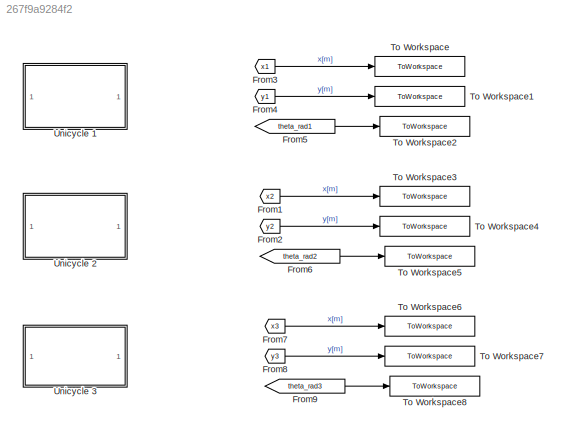
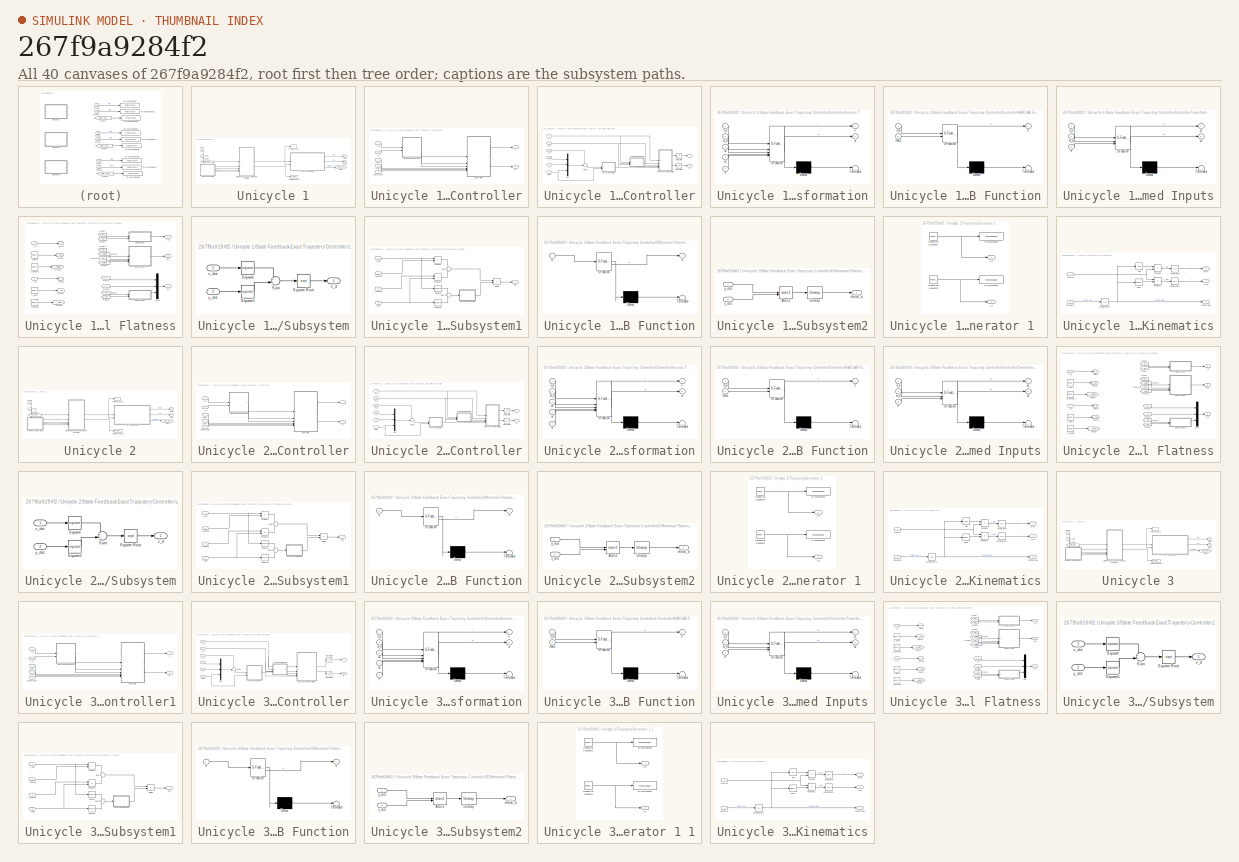
[diagram: thumbnail index - all 40 canvases of the model, root first then tree order]
MODEL slx_267f9a9284f2
KIND model
CONFIG AbsTol = auto
CONFIG EnableMultiTasking = off
CONFIG FixedStep = 1e-3
CONFIG MaxStep = 1e-3
CONFIG MinStep = auto
CONFIG RelTol = 1e-3
CONFIG SampleTimeConstraint = Unconstrained
CONFIG SolverName = ode4
CONFIG StartTime = 0.0
CONFIG StopTime = 50
BLOCK [From] From1
  GotoTag = x2
  TagVisibility = global
BLOCK [From] From2
  GotoTag = y2
  TagVisibility = global
BLOCK [From] From3
  GotoTag = x1
  TagVisibility = global
BLOCK [From] From4
  GotoTag = y1
  TagVisibility = global
BLOCK [From] From5
  GotoTag = theta_rad1
  TagVisibility = global
BLOCK [From] From6
  GotoTag = theta_rad2
  TagVisibility = global
BLOCK [From] From7
  GotoTag = x3
  TagVisibility = global
BLOCK [From] From8
  GotoTag = y3
  TagVisibility = global
BLOCK [From] From9
  GotoTag = theta_rad3
  TagVisibility = global
BLOCK [ToWorkspace] To Workspace
  FixptAsFi = on
  MaxDataPoints = inf
  SampleTime = -1
  SaveFormat = Structure With Time
  VariableName = x1
BLOCK [ToWorkspace] To Workspace1
  FixptAsFi = on
  MaxDataPoints = inf
  SampleTime = -1
  SaveFormat = Structure With Time
  VariableName = y1
BLOCK [ToWorkspace] To Workspace2
  FixptAsFi = on
  MaxDataPoints = inf
  SampleTime = -1
  SaveFormat = Structure With Time
  VariableName = theta_rad1
BLOCK [ToWorkspace] To Workspace3
  FixptAsFi = on
  MaxDataPoints = inf
  SampleTime = -1
  SaveFormat = Structure With Time
  VariableName = x2
BLOCK [ToWorkspace] To Workspace4
  FixptAsFi = on
  MaxDataPoints = inf
  SampleTime = -1
  SaveFormat = Structure With Time
  VariableName = y2
BLOCK [ToWorkspace] To Workspace5
  FixptAsFi = on
  MaxDataPoints = inf
  SampleTime = -1
  SaveFormat = Structure With Time
  VariableName = theta_rad2
BLOCK [ToWorkspace] To Workspace6
  FixptAsFi = on
  MaxDataPoints = inf
  SampleTime = -1
  SaveFormat = Structure With Time
  VariableName = x3
BLOCK [ToWorkspace] To Workspace7
  FixptAsFi = on
  MaxDataPoints = inf
  SampleTime = -1
  SaveFormat = Structure With Time
  VariableName = y3
BLOCK [ToWorkspace] To Workspace8
  FixptAsFi = on
  MaxDataPoints = inf
  SampleTime = -1
  SaveFormat = Structure With Time
  VariableName = theta_rad3
BLOCK [SubSystem] Unicycle 1
BLOCK [From] Unicycle 1/From3
  GotoTag = x1
  TagVisibility = global
BLOCK [From] Unicycle 1/From4
  GotoTag = y1
  TagVisibility = global
BLOCK [From] Unicycle 1/From5
  GotoTag = theta_rad1
  TagVisibility = global
BLOCK [Goto] Unicycle 1/Goto
  GotoTag = x1
  TagVisibility = global
BLOCK [Goto] Unicycle 1/Goto1
  GotoTag = y1
  TagVisibility = global
BLOCK [Goto] Unicycle 1/Goto2
  GotoTag = theta_rad1
  TagVisibility = global
BLOCK [SubSystem] Unicycle 1/State Feedback Exact Trajectory Controller
BLOCK [SubSystem] Unicycle 1/State Feedback Exact Trajectory Controller/Controller
BLOCK [SubSystem] Unicycle 1/State Feedback Exact Trajectory Controller/Controller/Inverse Transformation
  ErrorFcn = Stateflow.Translate.translate
  LibrarySourceBlock = simulink/User-Defined\nFunctions/MATLAB Function
  PermitHierarchicalResolution = ExplicitOnly
  SFBlockType = MATLAB Function
  TreatAsAtomicUnit = on
BLOCK [Demux] Unicycle 1/State Feedback Exact Trajectory Controller/Controller/Inverse Transformation/ Demux 
  Outputs = 1
BLOCK [S-Function] Unicycle 1/State Feedback Exact Trajectory Controller/Controller/Inverse Transformation/ SFunction 
  EnableBusSupport = on
  FunctionName = sf_sfun
  PortCounts = [5 3]
  SFcnIsStateOwnerBlock = off
  SFunctionDeploymentMode = off
  Tag = Stateflow S-Function 5
BLOCK [Terminator] Unicycle 1/State Feedback Exact Trajectory Controller/Controller/Inverse Transformation/ Terminator 
BLOCK [Inport] Unicycle 1/State Feedback Exact Trajectory Controller/Controller/Inverse Transformation/e
  Port = 5
BLOCK [Inport] Unicycle 1/State Feedback Exact Trajectory Controller/Controller/Inverse Transformation/u1
  Port = 3
BLOCK [Inport] Unicycle 1/State Feedback Exact Trajectory Controller/Controller/Inverse Transformation/u2
  Port = 4
BLOCK [Outport] Unicycle 1/State Feedback Exact Trajectory Controller/Controller/Inverse Transformation/v
BLOCK [Inport] Unicycle 1/State Feedback Exact Trajectory Controller/Controller/Inverse Transformation/v_d
BLOCK [Outport] Unicycle 1/State Feedback Exact Trajectory Controller/Controller/Inverse Transformation/w
  Port = 2
BLOCK [Inport] Unicycle 1/State Feedback Exact Trajectory Controller/Controller/Inverse Transformation/w_d
  Port = 2
BLOCK [SubSystem] Unicycle 1/State Feedback Exact Trajectory Controller/Controller/MATLAB Function
  ErrorFcn = Stateflow.Translate.translate
  LibrarySourceBlock = simulink/User-Defined\nFunctions/MATLAB Function
  PermitHierarchicalResolution = ExplicitOnly
  SFBlockType = MATLAB Function
  TreatAsAtomicUnit = on
BLOCK [Demux] Unicycle 1/State Feedback Exact Trajectory Controller/Controller/MATLAB Function/ Demux 
  Outputs = 1
BLOCK [S-Function] Unicycle 1/State Feedback Exact Trajectory Controller/Controller/MATLAB Function/ SFunction 
  EnableBusSupport = on
  FunctionName = sf_sfun
  PortCounts = [2 2]
  SFcnIsStateOwnerBlock = off
  SFunctionDeploymentMode = off
  Tag = Stateflow S-Function 6
BLOCK [Terminator] Unicycle 1/State Feedback Exact Trajectory Controller/Controller/MATLAB Function/ Terminator 
BLOCK [Outport] Unicycle 1/State Feedback Exact Trajectory Controller/Controller/MATLAB Function/e
BLOCK [Inport] Unicycle 1/State Feedback Exact Trajectory Controller/Controller/MATLAB Function/e_w
BLOCK [Inport] Unicycle 1/State Feedback Exact Trajectory Controller/Controller/MATLAB Function/theta
  Port = 2
BLOCK [Mux] Unicycle 1/State Feedback Exact Trajectory Controller/Controller/Mux
  DisplayOption = bar
  Inputs = 3
BLOCK [Saturate] Unicycle 1/State Feedback Exact Trajectory Controller/Controller/Saturation
  LowerLimit = -v_sat
  UpperLimit = v_sat
BLOCK [Saturate] Unicycle 1/State Feedback Exact Trajectory Controller/Controller/Saturation1
  LowerLimit = -w_sat
  UpperLimit = w_sat
BLOCK [Sum] Unicycle 1/State Feedback Exact Trajectory Controller/Controller/Sum2
  Inputs = +-|
BLOCK [SubSystem] Unicycle 1/State Feedback Exact Trajectory Controller/Controller/Transformed Inputs
  ErrorFcn = Stateflow.Translate.translate
  LibrarySourceBlock = simulink/User-Defined\nFunctions/MATLAB Function
  NameLocation = top
  PermitHierarchicalResolution = ExplicitOnly
  SFBlockType = MATLAB Function
  TreatAsAtomicUnit = on
BLOCK [Demux] Unicycle 1/State Feedback Exact Trajectory Controller/Controller/Transformed Inputs/ Demux 
  Outputs = 1
BLOCK [S-Function] Unicycle 1/State Feedback Exact Trajectory Controller/Controller/Transformed Inputs/ SFunction 
  EnableBusSupport = on
  FunctionName = sf_sfun
  Parameters = SF_b,SF_xi1
  PortCounts = [3 3]
  SFcnIsStateOwnerBlock = off
  SFunctionDeploymentMode = off
  Tag = Stateflow S-Function 7
BLOCK [Terminator] Unicycle 1/State Feedback Exact Trajectory Controller/Controller/Transformed Inputs/ Terminator 
BLOCK [Inport] Unicycle 1/State Feedback Exact Trajectory Controller/Controller/Transformed Inputs/e
  Port = 3
BLOCK [Outport] Unicycle 1/State Feedback Exact Trajectory Controller/Controller/Transformed Inputs/u1
BLOCK [Outport] Unicycle 1/State Feedback Exact Trajectory Controller/Controller/Transformed Inputs/u2
  Port = 2
BLOCK [Inport] Unicycle 1/State Feedback Exact Trajectory Controller/Controller/Transformed Inputs/v_d
BLOCK [Inport] Unicycle 1/State Feedback Exact Trajectory Controller/Controller/Transformed Inputs/w_d
  Port = 2
BLOCK [Inport] Unicycle 1/State Feedback Exact Trajectory Controller/Controller/q_d
BLOCK [Inport] Unicycle 1/State Feedback Exact Trajectory Controller/Controller/theta
  Port = 6
BLOCK [Outport] Unicycle 1/State Feedback Exact Trajectory Controller/Controller/v
BLOCK [Inport] Unicycle 1/State Feedback Exact Trajectory Controller/Controller/v_d
  Port = 2
BLOCK [Outport] Unicycle 1/State Feedback Exact Trajectory Controller/Controller/w
  Port = 2
BLOCK [Inport] Unicycle 1/State Feedback Exact Trajectory Controller/Controller/w_d
  Port = 3
BLOCK [Inport] Unicycle 1/State Feedback Exact Trajectory Controller/Controller/x
  Port = 4
BLOCK [Inport] Unicycle 1/State Feedback Exact Trajectory Controller/Controller/y
  Port = 5
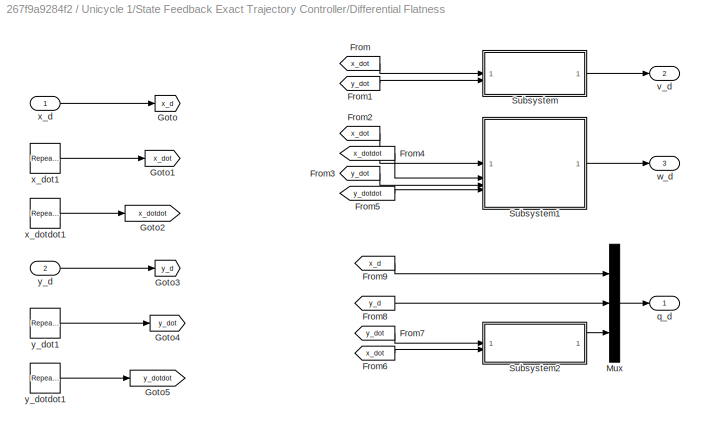
BLOCK [SubSystem] Unicycle 1/State Feedback Exact Trajectory Controller/Differential Flatness
  NameLocation = top
BLOCK [From] Unicycle 1/State Feedback Exact Trajectory Controller/Differential Flatness/From
  GotoTag = x_dot
BLOCK [From] Unicycle 1/State Feedback Exact Trajectory Controller/Differential Flatness/From1
  GotoTag = y_dot
BLOCK [From] Unicycle 1/State Feedback Exact Trajectory Controller/Differential Flatness/From2
  GotoTag = x_dot
BLOCK [From] Unicycle 1/State Feedback Exact Trajectory Controller/Differential Flatness/From3
  GotoTag = y_dot
BLOCK [From] Unicycle 1/State Feedback Exact Trajectory Controller/Differential Flatness/From4
  GotoTag = x_dotdot
BLOCK [From] Unicycle 1/State Feedback Exact Trajectory Controller/Differential Flatness/From5
  GotoTag = y_dotdot
BLOCK [From] Unicycle 1/State Feedback Exact Trajectory Controller/Differential Flatness/From6
  GotoTag = x_dot
BLOCK [From] Unicycle 1/State Feedback Exact Trajectory Controller/Differential Flatness/From7
  GotoTag = y_dot
BLOCK [From] Unicycle 1/State Feedback Exact Trajectory Controller/Differential Flatness/From8
  GotoTag = y_d
BLOCK [From] Unicycle 1/State Feedback Exact Trajectory Controller/Differential Flatness/From9
  GotoTag = x_d
BLOCK [Goto] Unicycle 1/State Feedback Exact Trajectory Controller/Differential Flatness/Goto
  GotoTag = x_d
BLOCK [Goto] Unicycle 1/State Feedback Exact Trajectory Controller/Differential Flatness/Goto1
  GotoTag = x_dot
BLOCK [Goto] Unicycle 1/State Feedback Exact Trajectory Controller/Differential Flatness/Goto2
  GotoTag = x_dotdot
BLOCK [Goto] Unicycle 1/State Feedback Exact Trajectory Controller/Differential Flatness/Goto3
  GotoTag = y_d
BLOCK [Goto] Unicycle 1/State Feedback Exact Trajectory Controller/Differential Flatness/Goto4
  GotoTag = y_dot
BLOCK [Goto] Unicycle 1/State Feedback Exact Trajectory Controller/Differential Flatness/Goto5
  GotoTag = y_dotdot
BLOCK [Mux] Unicycle 1/State Feedback Exact Trajectory Controller/Differential Flatness/Mux
  DisplayOption = bar
  Inputs = 3
BLOCK [SubSystem] Unicycle 1/State Feedback Exact Trajectory Controller/Differential Flatness/Subsystem
BLOCK [Math] Unicycle 1/State Feedback Exact Trajectory Controller/Differential Flatness/Subsystem/Square
  Operator = square
BLOCK [Sqrt] Unicycle 1/State Feedback Exact Trajectory Controller/Differential Flatness/Subsystem/Square Root
BLOCK [Math] Unicycle 1/State Feedback Exact Trajectory Controller/Differential Flatness/Subsystem/Square1
  Operator = square
BLOCK [Sum] Unicycle 1/State Feedback Exact Trajectory Controller/Differential Flatness/Subsystem/Sum
BLOCK [Outport] Unicycle 1/State Feedback Exact Trajectory Controller/Differential Flatness/Subsystem/v_d
BLOCK [Inport] Unicycle 1/State Feedback Exact Trajectory Controller/Differential Flatness/Subsystem/x_dot
BLOCK [Inport] Unicycle 1/State Feedback Exact Trajectory Controller/Differential Flatness/Subsystem/y_dot
  Port = 2
BLOCK [SubSystem] Unicycle 1/State Feedback Exact Trajectory Controller/Differential Flatness/Subsystem1
BLOCK [Product] Unicycle 1/State Feedback Exact Trajectory Controller/Differential Flatness/Subsystem1/Divide
  Inputs = */
BLOCK [SubSystem] Unicycle 1/State Feedback Exact Trajectory Controller/Differential Flatness/Subsystem1/MATLAB Function
  ErrorFcn = Stateflow.Translate.translate
  LibrarySourceBlock = simulink/User-Defined\nFunctions/MATLAB Function
  PermitHierarchicalResolution = ExplicitOnly
  SFBlockType = MATLAB Function
  TreatAsAtomicUnit = on
BLOCK [Demux] Unicycle 1/State Feedback Exact Trajectory Controller/Differential Flatness/Subsystem1/MATLAB Function/ Demux 
  Outputs = 1
BLOCK [S-Function] Unicycle 1/State Feedback Exact Trajectory Controller/Differential Flatness/Subsystem1/MATLAB Function/ SFunction 
  EnableBusSupport = on
  FunctionName = sf_sfun
  PortCounts = [1 2]
  SFcnIsStateOwnerBlock = off
  SFunctionDeploymentMode = off
  Tag = Stateflow S-Function 8
BLOCK [Terminator] Unicycle 1/State Feedback Exact Trajectory Controller/Differential Flatness/Subsystem1/MATLAB Function/ Terminator 
BLOCK [Outport] Unicycle 1/State Feedback Exact Trajectory Controller/Differential Flatness/Subsystem1/MATLAB Function/u
BLOCK [Inport] Unicycle 1/State Feedback Exact Trajectory Controller/Differential Flatness/Subsystem1/MATLAB Function/u 
BLOCK [Product] Unicycle 1/State Feedback Exact Trajectory Controller/Differential Flatness/Subsystem1/Product
BLOCK [Product] Unicycle 1/State Feedback Exact Trajectory Controller/Differential Flatness/Subsystem1/Product1
BLOCK [Math] Unicycle 1/State Feedback Exact Trajectory Controller/Differential Flatness/Subsystem1/Square
  Operator = square
BLOCK [Math] Unicycle 1/State Feedback Exact Trajectory Controller/Differential Flatness/Subsystem1/Square1
  Operator = square
BLOCK [Sum] Unicycle 1/State Feedback Exact Trajectory Controller/Differential Flatness/Subsystem1/Sum
  Inputs = +-
BLOCK [Sum] Unicycle 1/State Feedback Exact Trajectory Controller/Differential Flatness/Subsystem1/Sum1
BLOCK [Outport] Unicycle 1/State Feedback Exact Trajectory Controller/Differential Flatness/Subsystem1/w_d
BLOCK [Inport] Unicycle 1/State Feedback Exact Trajectory Controller/Differential Flatness/Subsystem1/x_dot
BLOCK [Inport] Unicycle 1/State Feedback Exact Trajectory Controller/Differential Flatness/Subsystem1/x_dotdot
  Port = 2
BLOCK [Inport] Unicycle 1/State Feedback Exact Trajectory Controller/Differential Flatness/Subsystem1/y_dot
  Port = 3
BLOCK [Inport] Unicycle 1/State Feedback Exact Trajectory Controller/Differential Flatness/Subsystem1/y_dotdot
  Port = 4
BLOCK [SubSystem] Unicycle 1/State Feedback Exact Trajectory Controller/Differential Flatness/Subsystem2
BLOCK [Trigonometry] Unicycle 1/State Feedback Exact Trajectory Controller/Differential Flatness/Subsystem2/Atan2
  Operator = atan2
BLOCK [Reference] Unicycle 1/State Feedback Exact Trajectory Controller/Differential Flatness/Subsystem2/Unwrap  REF=dspsigops/Unwrap
  SourceBlock = dspsigops/Unwrap
  SourceType = Unwrap
  UserDataPersistent = on
BLOCK [Outport] Unicycle 1/State Feedback Exact Trajectory Controller/Differential Flatness/Subsystem2/theta_d
BLOCK [Inport] Unicycle 1/State Feedback Exact Trajectory Controller/Differential Flatness/Subsystem2/x_dot
  Port = 2
BLOCK [Inport] Unicycle 1/State Feedback Exact Trajectory Controller/Differential Flatness/Subsystem2/y_dot
BLOCK [Outport] Unicycle 1/State Feedback Exact Trajectory Controller/Differential Flatness/q_d
BLOCK [Outport] Unicycle 1/State Feedback Exact Trajectory Controller/Differential Flatness/v_d
  Port = 2
BLOCK [Outport] Unicycle 1/State Feedback Exact Trajectory Controller/Differential Flatness/w_d
  Port = 3
BLOCK [Inport] Unicycle 1/State Feedback Exact Trajectory Controller/Differential Flatness/x_d
BLOCK [Reference] Unicycle 1/State Feedback Exact Trajectory Controller/Differential Flatness/x_dot1  REF=simulink/Sources/Repeating
Sequence
  SourceBlock = simulink/Sources/Repeating\nSequence
  SourceType = Repeating table
BLOCK [Reference] Unicycle 1/State Feedback Exact Trajectory Controller/Differential Flatness/x_dotdot1  REF=simulink/Sources/Repeating
Sequence
  SourceBlock = simulink/Sources/Repeating\nSequence
  SourceType = Repeating table
BLOCK [Inport] Unicycle 1/State Feedback Exact Trajectory Controller/Differential Flatness/y_d
  Port = 2
BLOCK [Reference] Unicycle 1/State Feedback Exact Trajectory Controller/Differential Flatness/y_dot1  REF=simulink/Sources/Repeating
Sequence
  SourceBlock = simulink/Sources/Repeating\nSequence
  SourceType = Repeating table
BLOCK [Reference] Unicycle 1/State Feedback Exact Trajectory Controller/Differential Flatness/y_dotdot1  REF=simulink/Sources/Repeating
Sequence
  SourceBlock = simulink/Sources/Repeating\nSequence
  SourceType = Repeating table
BLOCK [Inport] Unicycle 1/State Feedback Exact Trajectory Controller/theta[rad]
  Port = 3
BLOCK [Outport] Unicycle 1/State Feedback Exact Trajectory Controller/v
BLOCK [Outport] Unicycle 1/State Feedback Exact Trajectory Controller/w
  Port = 2
BLOCK [Inport] Unicycle 1/State Feedback Exact Trajectory Controller/x[m]
BLOCK [Inport] Unicycle 1/State Feedback Exact Trajectory Controller/x_d
  Port = 4
BLOCK [Inport] Unicycle 1/State Feedback Exact Trajectory Controller/y[m]
  Port = 2
BLOCK [Inport] Unicycle 1/State Feedback Exact Trajectory Controller/y_d
  Port = 5
BLOCK [ToWorkspace] Unicycle 1/To Workspace
  FixptAsFi = on
  MaxDataPoints = inf
  SampleTime = -1
  SaveFormat = Structure With Time
  VariableName = v1
BLOCK [ToWorkspace] Unicycle 1/To Workspace1
  FixptAsFi = on
  MaxDataPoints = inf
  SampleTime = -1
  SaveFormat = Structure With Time
  VariableName = w1
BLOCK [SubSystem] Unicycle 1/Trajectory Generator 1 
BLOCK [Reference] Unicycle 1/Trajectory Generator 1 /Repeating Sequence  REF=simulink/Sources/Repeating
Sequence
  SourceBlock = simulink/Sources/Repeating\nSequence
  SourceType = Repeating table
BLOCK [Reference] Unicycle 1/Trajectory Generator 1 /Repeating Sequence1  REF=simulink/Sources/Repeating
Sequence
  SourceBlock = simulink/Sources/Repeating\nSequence
  SourceType = Repeating table
BLOCK [ToWorkspace] Unicycle 1/Trajectory Generator 1 /To Workspace2
  FixptAsFi = on
  MaxDataPoints = inf
  SampleTime = -1
  SaveFormat = Structure With Time
  VariableName = y_d1
BLOCK [ToWorkspace] Unicycle 1/Trajectory Generator 1 /To Workspace3
  FixptAsFi = on
  MaxDataPoints = inf
  SampleTime = -1
  SaveFormat = Structure With Time
  VariableName = x_d1
BLOCK [Outport] Unicycle 1/Trajectory Generator 1 /x_d
BLOCK [Outport] Unicycle 1/Trajectory Generator 1 /y_d
  Port = 2
BLOCK [SubSystem] Unicycle 1/Unicycle Kinematics
BLOCK [Trigonometry] Unicycle 1/Unicycle Kinematics/Cos
  Operator = cos
BLOCK [Trigonometry] Unicycle 1/Unicycle Kinematics/Cos1
BLOCK [Integrator] Unicycle 1/Unicycle Kinematics/Integrator
  InitialCondition = TT_x_init
BLOCK [Integrator] Unicycle 1/Unicycle Kinematics/Integrator1
  InitialCondition = TT_y_init
BLOCK [Integrator] Unicycle 1/Unicycle Kinematics/Integrator2
  InitialCondition = TT_theta1_init
BLOCK [Product] Unicycle 1/Unicycle Kinematics/Product
BLOCK [Product] Unicycle 1/Unicycle Kinematics/Product1
BLOCK [Outport] Unicycle 1/Unicycle Kinematics/theta[rad]
  Port = 3
BLOCK [Inport] Unicycle 1/Unicycle Kinematics/v[m//s]
BLOCK [Inport] Unicycle 1/Unicycle Kinematics/w[rad//s]
  Port = 2
BLOCK [Outport] Unicycle 1/Unicycle Kinematics/x[m]
BLOCK [Outport] Unicycle 1/Unicycle Kinematics/y[m]
  Port = 2
BLOCK [SubSystem] Unicycle 2
BLOCK [From] Unicycle 2/From3
  GotoTag = x2
  TagVisibility = global
BLOCK [From] Unicycle 2/From4
  GotoTag = y2
  TagVisibility = global
BLOCK [From] Unicycle 2/From5
  GotoTag = theta_rad2
  TagVisibility = global
BLOCK [Goto] Unicycle 2/Goto
  GotoTag = x2
  TagVisibility = global
BLOCK [Goto] Unicycle 2/Goto1
  GotoTag = y2
  TagVisibility = global
BLOCK [Goto] Unicycle 2/Goto2
  GotoTag = theta_rad2
  TagVisibility = global
BLOCK [SubSystem] Unicycle 2/State Feedback Exact Trajectory Controller
BLOCK [SubSystem] Unicycle 2/State Feedback Exact Trajectory Controller/Controller
BLOCK [SubSystem] Unicycle 2/State Feedback Exact Trajectory Controller/Controller/Inverse Transformation
  ErrorFcn = Stateflow.Translate.translate
  LibrarySourceBlock = simulink/User-Defined\nFunctions/MATLAB Function
  PermitHierarchicalResolution = ExplicitOnly
  SFBlockType = MATLAB Function
  TreatAsAtomicUnit = on
BLOCK [Demux] Unicycle 2/State Feedback Exact Trajectory Controller/Controller/Inverse Transformation/ Demux 
  Outputs = 1
BLOCK [S-Function] Unicycle 2/State Feedback Exact Trajectory Controller/Controller/Inverse Transformation/ SFunction 
  EnableBusSupport = on
  FunctionName = sf_sfun
  PortCounts = [5 3]
  SFcnIsStateOwnerBlock = off
  SFunctionDeploymentMode = off
  Tag = Stateflow S-Function 1
BLOCK [Terminator] Unicycle 2/State Feedback Exact Trajectory Controller/Controller/Inverse Transformation/ Terminator 
BLOCK [Inport] Unicycle 2/State Feedback Exact Trajectory Controller/Controller/Inverse Transformation/e
  Port = 5
BLOCK [Inport] Unicycle 2/State Feedback Exact Trajectory Controller/Controller/Inverse Transformation/u1
  Port = 3
BLOCK [Inport] Unicycle 2/State Feedback Exact Trajectory Controller/Controller/Inverse Transformation/u2
  Port = 4
BLOCK [Outport] Unicycle 2/State Feedback Exact Trajectory Controller/Controller/Inverse Transformation/v
BLOCK [Inport] Unicycle 2/State Feedback Exact Trajectory Controller/Controller/Inverse Transformation/v_d
BLOCK [Outport] Unicycle 2/State Feedback Exact Trajectory Controller/Controller/Inverse Transformation/w
  Port = 2
BLOCK [Inport] Unicycle 2/State Feedback Exact Trajectory Controller/Controller/Inverse Transformation/w_d
  Port = 2
BLOCK [SubSystem] Unicycle 2/State Feedback Exact Trajectory Controller/Controller/MATLAB Function
  ErrorFcn = Stateflow.Translate.translate
  LibrarySourceBlock = simulink/User-Defined\nFunctions/MATLAB Function
  PermitHierarchicalResolution = ExplicitOnly
  SFBlockType = MATLAB Function
  TreatAsAtomicUnit = on
BLOCK [Demux] Unicycle 2/State Feedback Exact Trajectory Controller/Controller/MATLAB Function/ Demux 
  Outputs = 1
BLOCK [S-Function] Unicycle 2/State Feedback Exact Trajectory Controller/Controller/MATLAB Function/ SFunction 
  EnableBusSupport = on
  FunctionName = sf_sfun
  PortCounts = [2 2]
  SFcnIsStateOwnerBlock = off
  SFunctionDeploymentMode = off
  Tag = Stateflow S-Function 2
BLOCK [Terminator] Unicycle 2/State Feedback Exact Trajectory Controller/Controller/MATLAB Function/ Terminator 
BLOCK [Outport] Unicycle 2/State Feedback Exact Trajectory Controller/Controller/MATLAB Function/e
BLOCK [Inport] Unicycle 2/State Feedback Exact Trajectory Controller/Controller/MATLAB Function/e_w
BLOCK [Inport] Unicycle 2/State Feedback Exact Trajectory Controller/Controller/MATLAB Function/theta
  Port = 2
BLOCK [Mux] Unicycle 2/State Feedback Exact Trajectory Controller/Controller/Mux
  DisplayOption = bar
  Inputs = 3
BLOCK [Saturate] Unicycle 2/State Feedback Exact Trajectory Controller/Controller/Saturation
  LowerLimit = -v_sat
  UpperLimit = v_sat
BLOCK [Saturate] Unicycle 2/State Feedback Exact Trajectory Controller/Controller/Saturation1
  LowerLimit = -w_sat
  UpperLimit = w_sat
BLOCK [Sum] Unicycle 2/State Feedback Exact Trajectory Controller/Controller/Sum2
  Inputs = +-|
BLOCK [SubSystem] Unicycle 2/State Feedback Exact Trajectory Controller/Controller/Transformed Inputs
  ErrorFcn = Stateflow.Translate.translate
  LibrarySourceBlock = simulink/User-Defined\nFunctions/MATLAB Function
  NameLocation = top
  PermitHierarchicalResolution = ExplicitOnly
  SFBlockType = MATLAB Function
  TreatAsAtomicUnit = on
BLOCK [Demux] Unicycle 2/State Feedback Exact Trajectory Controller/Controller/Transformed Inputs/ Demux 
  Outputs = 1
BLOCK [S-Function] Unicycle 2/State Feedback Exact Trajectory Controller/Controller/Transformed Inputs/ SFunction 
  EnableBusSupport = on
  FunctionName = sf_sfun
  Parameters = SF_b,SF_xi1
  PortCounts = [3 3]
  SFcnIsStateOwnerBlock = off
  SFunctionDeploymentMode = off
  Tag = Stateflow S-Function 9
BLOCK [Terminator] Unicycle 2/State Feedback Exact Trajectory Controller/Controller/Transformed Inputs/ Terminator 
BLOCK [Inport] Unicycle 2/State Feedback Exact Trajectory Controller/Controller/Transformed Inputs/e
  Port = 3
BLOCK [Outport] Unicycle 2/State Feedback Exact Trajectory Controller/Controller/Transformed Inputs/u1
BLOCK [Outport] Unicycle 2/State Feedback Exact Trajectory Controller/Controller/Transformed Inputs/u2
  Port = 2
BLOCK [Inport] Unicycle 2/State Feedback Exact Trajectory Controller/Controller/Transformed Inputs/v_d
BLOCK [Inport] Unicycle 2/State Feedback Exact Trajectory Controller/Controller/Transformed Inputs/w_d
  Port = 2
BLOCK [Inport] Unicycle 2/State Feedback Exact Trajectory Controller/Controller/q_d
BLOCK [Inport] Unicycle 2/State Feedback Exact Trajectory Controller/Controller/theta
  Port = 6
BLOCK [Outport] Unicycle 2/State Feedback Exact Trajectory Controller/Controller/v
BLOCK [Inport] Unicycle 2/State Feedback Exact Trajectory Controller/Controller/v_d
  Port = 2
BLOCK [Outport] Unicycle 2/State Feedback Exact Trajectory Controller/Controller/w
  Port = 2
BLOCK [Inport] Unicycle 2/State Feedback Exact Trajectory Controller/Controller/w_d
  Port = 3
BLOCK [Inport] Unicycle 2/State Feedback Exact Trajectory Controller/Controller/x
  Port = 4
BLOCK [Inport] Unicycle 2/State Feedback Exact Trajectory Controller/Controller/y
  Port = 5
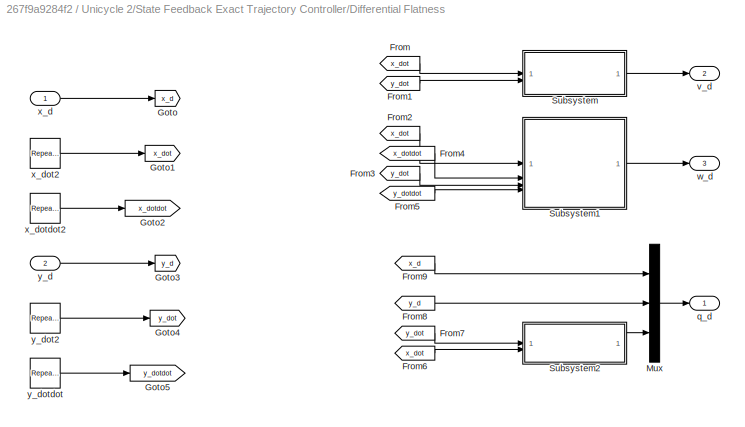
BLOCK [SubSystem] Unicycle 2/State Feedback Exact Trajectory Controller/Differential Flatness
  NameLocation = top
BLOCK [From] Unicycle 2/State Feedback Exact Trajectory Controller/Differential Flatness/From
  GotoTag = x_dot
BLOCK [From] Unicycle 2/State Feedback Exact Trajectory Controller/Differential Flatness/From1
  GotoTag = y_dot
BLOCK [From] Unicycle 2/State Feedback Exact Trajectory Controller/Differential Flatness/From2
  GotoTag = x_dot
BLOCK [From] Unicycle 2/State Feedback Exact Trajectory Controller/Differential Flatness/From3
  GotoTag = y_dot
BLOCK [From] Unicycle 2/State Feedback Exact Trajectory Controller/Differential Flatness/From4
  GotoTag = x_dotdot
BLOCK [From] Unicycle 2/State Feedback Exact Trajectory Controller/Differential Flatness/From5
  GotoTag = y_dotdot
BLOCK [From] Unicycle 2/State Feedback Exact Trajectory Controller/Differential Flatness/From6
  GotoTag = x_dot
BLOCK [From] Unicycle 2/State Feedback Exact Trajectory Controller/Differential Flatness/From7
  GotoTag = y_dot
BLOCK [From] Unicycle 2/State Feedback Exact Trajectory Controller/Differential Flatness/From8
  GotoTag = y_d
BLOCK [From] Unicycle 2/State Feedback Exact Trajectory Controller/Differential Flatness/From9
  GotoTag = x_d
BLOCK [Goto] Unicycle 2/State Feedback Exact Trajectory Controller/Differential Flatness/Goto
  GotoTag = x_d
BLOCK [Goto] Unicycle 2/State Feedback Exact Trajectory Controller/Differential Flatness/Goto1
  GotoTag = x_dot
BLOCK [Goto] Unicycle 2/State Feedback Exact Trajectory Controller/Differential Flatness/Goto2
  GotoTag = x_dotdot
BLOCK [Goto] Unicycle 2/State Feedback Exact Trajectory Controller/Differential Flatness/Goto3
  GotoTag = y_d
BLOCK [Goto] Unicycle 2/State Feedback Exact Trajectory Controller/Differential Flatness/Goto4
  GotoTag = y_dot
BLOCK [Goto] Unicycle 2/State Feedback Exact Trajectory Controller/Differential Flatness/Goto5
  GotoTag = y_dotdot
BLOCK [Mux] Unicycle 2/State Feedback Exact Trajectory Controller/Differential Flatness/Mux
  DisplayOption = bar
  Inputs = 3
BLOCK [SubSystem] Unicycle 2/State Feedback Exact Trajectory Controller/Differential Flatness/Subsystem
BLOCK [Math] Unicycle 2/State Feedback Exact Trajectory Controller/Differential Flatness/Subsystem/Square
  Operator = square
BLOCK [Sqrt] Unicycle 2/State Feedback Exact Trajectory Controller/Differential Flatness/Subsystem/Square Root
BLOCK [Math] Unicycle 2/State Feedback Exact Trajectory Controller/Differential Flatness/Subsystem/Square1
  Operator = square
BLOCK [Sum] Unicycle 2/State Feedback Exact Trajectory Controller/Differential Flatness/Subsystem/Sum
BLOCK [Outport] Unicycle 2/State Feedback Exact Trajectory Controller/Differential Flatness/Subsystem/v_d
BLOCK [Inport] Unicycle 2/State Feedback Exact Trajectory Controller/Differential Flatness/Subsystem/x_dot
BLOCK [Inport] Unicycle 2/State Feedback Exact Trajectory Controller/Differential Flatness/Subsystem/y_dot
  Port = 2
BLOCK [SubSystem] Unicycle 2/State Feedback Exact Trajectory Controller/Differential Flatness/Subsystem1
BLOCK [Product] Unicycle 2/State Feedback Exact Trajectory Controller/Differential Flatness/Subsystem1/Divide
  Inputs = */
BLOCK [SubSystem] Unicycle 2/State Feedback Exact Trajectory Controller/Differential Flatness/Subsystem1/MATLAB Function
  ErrorFcn = Stateflow.Translate.translate
  LibrarySourceBlock = simulink/User-Defined\nFunctions/MATLAB Function
  PermitHierarchicalResolution = ExplicitOnly
  SFBlockType = MATLAB Function
  TreatAsAtomicUnit = on
BLOCK [Demux] Unicycle 2/State Feedback Exact Trajectory Controller/Differential Flatness/Subsystem1/MATLAB Function/ Demux 
  Outputs = 1
BLOCK [S-Function] Unicycle 2/State Feedback Exact Trajectory Controller/Differential Flatness/Subsystem1/MATLAB Function/ SFunction 
  EnableBusSupport = on
  FunctionName = sf_sfun
  PortCounts = [1 2]
  SFcnIsStateOwnerBlock = off
  SFunctionDeploymentMode = off
  Tag = Stateflow S-Function 10
BLOCK [Terminator] Unicycle 2/State Feedback Exact Trajectory Controller/Differential Flatness/Subsystem1/MATLAB Function/ Terminator 
BLOCK [Outport] Unicycle 2/State Feedback Exact Trajectory Controller/Differential Flatness/Subsystem1/MATLAB Function/u
BLOCK [Inport] Unicycle 2/State Feedback Exact Trajectory Controller/Differential Flatness/Subsystem1/MATLAB Function/u 
BLOCK [Product] Unicycle 2/State Feedback Exact Trajectory Controller/Differential Flatness/Subsystem1/Product
BLOCK [Product] Unicycle 2/State Feedback Exact Trajectory Controller/Differential Flatness/Subsystem1/Product1
BLOCK [Math] Unicycle 2/State Feedback Exact Trajectory Controller/Differential Flatness/Subsystem1/Square
  Operator = square
BLOCK [Math] Unicycle 2/State Feedback Exact Trajectory Controller/Differential Flatness/Subsystem1/Square1
  Operator = square
BLOCK [Sum] Unicycle 2/State Feedback Exact Trajectory Controller/Differential Flatness/Subsystem1/Sum
  Inputs = +-
BLOCK [Sum] Unicycle 2/State Feedback Exact Trajectory Controller/Differential Flatness/Subsystem1/Sum1
BLOCK [Outport] Unicycle 2/State Feedback Exact Trajectory Controller/Differential Flatness/Subsystem1/w_d
BLOCK [Inport] Unicycle 2/State Feedback Exact Trajectory Controller/Differential Flatness/Subsystem1/x_dot
BLOCK [Inport] Unicycle 2/State Feedback Exact Trajectory Controller/Differential Flatness/Subsystem1/x_dotdot
  Port = 2
BLOCK [Inport] Unicycle 2/State Feedback Exact Trajectory Controller/Differential Flatness/Subsystem1/y_dot
  Port = 3
BLOCK [Inport] Unicycle 2/State Feedback Exact Trajectory Controller/Differential Flatness/Subsystem1/y_dotdot
  Port = 4
BLOCK [SubSystem] Unicycle 2/State Feedback Exact Trajectory Controller/Differential Flatness/Subsystem2
BLOCK [Trigonometry] Unicycle 2/State Feedback Exact Trajectory Controller/Differential Flatness/Subsystem2/Atan2
  Operator = atan2
BLOCK [Reference] Unicycle 2/State Feedback Exact Trajectory Controller/Differential Flatness/Subsystem2/Unwrap  REF=dspsigops/Unwrap
  SourceBlock = dspsigops/Unwrap
  SourceType = Unwrap
  UserDataPersistent = on
BLOCK [Outport] Unicycle 2/State Feedback Exact Trajectory Controller/Differential Flatness/Subsystem2/theta_d
BLOCK [Inport] Unicycle 2/State Feedback Exact Trajectory Controller/Differential Flatness/Subsystem2/x_dot
  Port = 2
BLOCK [Inport] Unicycle 2/State Feedback Exact Trajectory Controller/Differential Flatness/Subsystem2/y_dot
BLOCK [Outport] Unicycle 2/State Feedback Exact Trajectory Controller/Differential Flatness/q_d
BLOCK [Outport] Unicycle 2/State Feedback Exact Trajectory Controller/Differential Flatness/v_d
  Port = 2
BLOCK [Outport] Unicycle 2/State Feedback Exact Trajectory Controller/Differential Flatness/w_d
  Port = 3
BLOCK [Inport] Unicycle 2/State Feedback Exact Trajectory Controller/Differential Flatness/x_d
BLOCK [Reference] Unicycle 2/State Feedback Exact Trajectory Controller/Differential Flatness/x_dot2  REF=simulink/Sources/Repeating
Sequence
  SourceBlock = simulink/Sources/Repeating\nSequence
  SourceType = Repeating table
BLOCK [Reference] Unicycle 2/State Feedback Exact Trajectory Controller/Differential Flatness/x_dotdot2  REF=simulink/Sources/Repeating
Sequence
  SourceBlock = simulink/Sources/Repeating\nSequence
  SourceType = Repeating table
BLOCK [Inport] Unicycle 2/State Feedback Exact Trajectory Controller/Differential Flatness/y_d
  Port = 2
BLOCK [Reference] Unicycle 2/State Feedback Exact Trajectory Controller/Differential Flatness/y_dot2  REF=simulink/Sources/Repeating
Sequence
  SourceBlock = simulink/Sources/Repeating\nSequence
  SourceType = Repeating table
BLOCK [Reference] Unicycle 2/State Feedback Exact Trajectory Controller/Differential Flatness/y_dotdot  REF=simulink/Sources/Repeating
Sequence
  SourceBlock = simulink/Sources/Repeating\nSequence
  SourceType = Repeating table
BLOCK [Inport] Unicycle 2/State Feedback Exact Trajectory Controller/theta[rad]
  Port = 3
BLOCK [Outport] Unicycle 2/State Feedback Exact Trajectory Controller/v
BLOCK [Outport] Unicycle 2/State Feedback Exact Trajectory Controller/w
  Port = 2
BLOCK [Inport] Unicycle 2/State Feedback Exact Trajectory Controller/x[m]
BLOCK [Inport] Unicycle 2/State Feedback Exact Trajectory Controller/x_d
  Port = 4
BLOCK [Inport] Unicycle 2/State Feedback Exact Trajectory Controller/y[m]
  Port = 2
BLOCK [Inport] Unicycle 2/State Feedback Exact Trajectory Controller/y_d
  Port = 5
BLOCK [ToWorkspace] Unicycle 2/To Workspace
  FixptAsFi = on
  MaxDataPoints = inf
  SampleTime = -1
  SaveFormat = Structure With Time
  VariableName = v2
BLOCK [ToWorkspace] Unicycle 2/To Workspace1
  FixptAsFi = on
  MaxDataPoints = inf
  SampleTime = -1
  SaveFormat = Structure With Time
  VariableName = w2
BLOCK [SubSystem] Unicycle 2/Trajectory Generator 1 
BLOCK [Reference] Unicycle 2/Trajectory Generator 1 /Repeating Sequence  REF=simulink/Sources/Repeating
Sequence
  SourceBlock = simulink/Sources/Repeating\nSequence
  SourceType = Repeating table
BLOCK [Reference] Unicycle 2/Trajectory Generator 1 /Repeating Sequence1  REF=simulink/Sources/Repeating
Sequence
  SourceBlock = simulink/Sources/Repeating\nSequence
  SourceType = Repeating table
BLOCK [ToWorkspace] Unicycle 2/Trajectory Generator 1 /To Workspace2
  FixptAsFi = on
  MaxDataPoints = inf
  SampleTime = -1
  SaveFormat = Structure With Time
  VariableName = y_d2
BLOCK [ToWorkspace] Unicycle 2/Trajectory Generator 1 /To Workspace3
  FixptAsFi = on
  MaxDataPoints = inf
  SampleTime = -1
  SaveFormat = Structure With Time
  VariableName = x_d2
BLOCK [Outport] Unicycle 2/Trajectory Generator 1 /x_d
BLOCK [Outport] Unicycle 2/Trajectory Generator 1 /y_d
  Port = 2
BLOCK [SubSystem] Unicycle 2/Unicycle Kinematics
BLOCK [Trigonometry] Unicycle 2/Unicycle Kinematics/Cos
  Operator = cos
BLOCK [Trigonometry] Unicycle 2/Unicycle Kinematics/Cos1
BLOCK [Integrator] Unicycle 2/Unicycle Kinematics/Integrator
  InitialCondition = TT_x_init
BLOCK [Integrator] Unicycle 2/Unicycle Kinematics/Integrator1
  InitialCondition = TT_y_init
BLOCK [Integrator] Unicycle 2/Unicycle Kinematics/Integrator2
  InitialCondition = TT_theta2_init
BLOCK [Product] Unicycle 2/Unicycle Kinematics/Product
BLOCK [Product] Unicycle 2/Unicycle Kinematics/Product1
BLOCK [Outport] Unicycle 2/Unicycle Kinematics/theta[rad]
  Port = 3
BLOCK [Inport] Unicycle 2/Unicycle Kinematics/v[m//s]
BLOCK [Inport] Unicycle 2/Unicycle Kinematics/w[rad//s]
  Port = 2
BLOCK [Outport] Unicycle 2/Unicycle Kinematics/x[m]
BLOCK [Outport] Unicycle 2/Unicycle Kinematics/y[m]
  Port = 2
BLOCK [SubSystem] Unicycle 3
BLOCK [From] Unicycle 3/From3
  GotoTag = x3
  TagVisibility = global
BLOCK [From] Unicycle 3/From4
  GotoTag = y3
  TagVisibility = global
BLOCK [From] Unicycle 3/From5
  GotoTag = theta_rad3
  TagVisibility = global
BLOCK [Goto] Unicycle 3/Goto
  GotoTag = x3
  TagVisibility = global
BLOCK [Goto] Unicycle 3/Goto1
  GotoTag = y3
  TagVisibility = global
BLOCK [Goto] Unicycle 3/Goto2
  GotoTag = theta_rad3
  TagVisibility = global
BLOCK [SubSystem] Unicycle 3/State Feedback Exact Trajectory Controller1
BLOCK [SubSystem] Unicycle 3/State Feedback Exact Trajectory Controller1/Controller
BLOCK [SubSystem] Unicycle 3/State Feedback Exact Trajectory Controller1/Controller/Inverse Transformation
  ErrorFcn = Stateflow.Translate.translate
  LibrarySourceBlock = simulink/User-Defined\nFunctions/MATLAB Function
  PermitHierarchicalResolution = ExplicitOnly
  SFBlockType = MATLAB Function
  TreatAsAtomicUnit = on
BLOCK [Demux] Unicycle 3/State Feedback Exact Trajectory Controller1/Controller/Inverse Transformation/ Demux 
  Outputs = 1
BLOCK [S-Function] Unicycle 3/State Feedback Exact Trajectory Controller1/Controller/Inverse Transformation/ SFunction 
  EnableBusSupport = on
  FunctionName = sf_sfun
  PortCounts = [5 3]
  SFcnIsStateOwnerBlock = off
  SFunctionDeploymentMode = off
  Tag = Stateflow S-Function 14
BLOCK [Terminator] Unicycle 3/State Feedback Exact Trajectory Controller1/Controller/Inverse Transformation/ Terminator 
BLOCK [Inport] Unicycle 3/State Feedback Exact Trajectory Controller1/Controller/Inverse Transformation/e
  Port = 5
BLOCK [Inport] Unicycle 3/State Feedback Exact Trajectory Controller1/Controller/Inverse Transformation/u1
  Port = 3
BLOCK [Inport] Unicycle 3/State Feedback Exact Trajectory Controller1/Controller/Inverse Transformation/u2
  Port = 4
BLOCK [Outport] Unicycle 3/State Feedback Exact Trajectory Controller1/Controller/Inverse Transformation/v
BLOCK [Inport] Unicycle 3/State Feedback Exact Trajectory Controller1/Controller/Inverse Transformation/v_d
BLOCK [Outport] Unicycle 3/State Feedback Exact Trajectory Controller1/Controller/Inverse Transformation/w
  Port = 2
BLOCK [Inport] Unicycle 3/State Feedback Exact Trajectory Controller1/Controller/Inverse Transformation/w_d
  Port = 2
BLOCK [SubSystem] Unicycle 3/State Feedback Exact Trajectory Controller1/Controller/MATLAB Function
  ErrorFcn = Stateflow.Translate.translate
  LibrarySourceBlock = simulink/User-Defined\nFunctions/MATLAB Function
  PermitHierarchicalResolution = ExplicitOnly
  SFBlockType = MATLAB Function
  TreatAsAtomicUnit = on
BLOCK [Demux] Unicycle 3/State Feedback Exact Trajectory Controller1/Controller/MATLAB Function/ Demux 
  Outputs = 1
BLOCK [S-Function] Unicycle 3/State Feedback Exact Trajectory Controller1/Controller/MATLAB Function/ SFunction 
  EnableBusSupport = on
  FunctionName = sf_sfun
  PortCounts = [2 2]
  SFcnIsStateOwnerBlock = off
  SFunctionDeploymentMode = off
  Tag = Stateflow S-Function 15
BLOCK [Terminator] Unicycle 3/State Feedback Exact Trajectory Controller1/Controller/MATLAB Function/ Terminator 
BLOCK [Outport] Unicycle 3/State Feedback Exact Trajectory Controller1/Controller/MATLAB Function/e
BLOCK [Inport] Unicycle 3/State Feedback Exact Trajectory Controller1/Controller/MATLAB Function/e_w
BLOCK [Inport] Unicycle 3/State Feedback Exact Trajectory Controller1/Controller/MATLAB Function/theta
  Port = 2
BLOCK [Mux] Unicycle 3/State Feedback Exact Trajectory Controller1/Controller/Mux
  DisplayOption = bar
  Inputs = 3
BLOCK [Saturate] Unicycle 3/State Feedback Exact Trajectory Controller1/Controller/Saturation
  LowerLimit = -v_sat
  UpperLimit = v_sat
BLOCK [Saturate] Unicycle 3/State Feedback Exact Trajectory Controller1/Controller/Saturation1
  LowerLimit = -w_sat
  UpperLimit = w_sat
BLOCK [Sum] Unicycle 3/State Feedback Exact Trajectory Controller1/Controller/Sum2
  Inputs = +-|
BLOCK [SubSystem] Unicycle 3/State Feedback Exact Trajectory Controller1/Controller/Transformed Inputs
  ErrorFcn = Stateflow.Translate.translate
  LibrarySourceBlock = simulink/User-Defined\nFunctions/MATLAB Function
  NameLocation = top
  PermitHierarchicalResolution = ExplicitOnly
  SFBlockType = MATLAB Function
  TreatAsAtomicUnit = on
BLOCK [Demux] Unicycle 3/State Feedback Exact Trajectory Controller1/Controller/Transformed Inputs/ Demux 
  Outputs = 1
BLOCK [S-Function] Unicycle 3/State Feedback Exact Trajectory Controller1/Controller/Transformed Inputs/ SFunction 
  EnableBusSupport = on
  FunctionName = sf_sfun
  Parameters = SF_b,SF_xi1
  PortCounts = [3 3]
  SFcnIsStateOwnerBlock = off
  SFunctionDeploymentMode = off
  Tag = Stateflow S-Function 16
BLOCK [Terminator] Unicycle 3/State Feedback Exact Trajectory Controller1/Controller/Transformed Inputs/ Terminator 
BLOCK [Inport] Unicycle 3/State Feedback Exact Trajectory Controller1/Controller/Transformed Inputs/e
  Port = 3
BLOCK [Outport] Unicycle 3/State Feedback Exact Trajectory Controller1/Controller/Transformed Inputs/u1
BLOCK [Outport] Unicycle 3/State Feedback Exact Trajectory Controller1/Controller/Transformed Inputs/u2
  Port = 2
BLOCK [Inport] Unicycle 3/State Feedback Exact Trajectory Controller1/Controller/Transformed Inputs/v_d
BLOCK [Inport] Unicycle 3/State Feedback Exact Trajectory Controller1/Controller/Transformed Inputs/w_d
  Port = 2
BLOCK [Inport] Unicycle 3/State Feedback Exact Trajectory Controller1/Controller/q_d
BLOCK [Inport] Unicycle 3/State Feedback Exact Trajectory Controller1/Controller/theta
  Port = 6
BLOCK [Outport] Unicycle 3/State Feedback Exact Trajectory Controller1/Controller/v
BLOCK [Inport] Unicycle 3/State Feedback Exact Trajectory Controller1/Controller/v_d
  Port = 2
BLOCK [Outport] Unicycle 3/State Feedback Exact Trajectory Controller1/Controller/w
  Port = 2
BLOCK [Inport] Unicycle 3/State Feedback Exact Trajectory Controller1/Controller/w_d
  Port = 3
BLOCK [Inport] Unicycle 3/State Feedback Exact Trajectory Controller1/Controller/x
  Port = 4
BLOCK [Inport] Unicycle 3/State Feedback Exact Trajectory Controller1/Controller/y
  Port = 5
BLOCK [SubSystem] Unicycle 3/State Feedback Exact Trajectory Controller1/Differential Flatness
  NameLocation = top
BLOCK [From] Unicycle 3/State Feedback Exact Trajectory Controller1/Differential Flatness/From
  GotoTag = x_dot
BLOCK [From] Unicycle 3/State Feedback Exact Trajectory Controller1/Differential Flatness/From1
  GotoTag = y_dot
BLOCK [From] Unicycle 3/State Feedback Exact Trajectory Controller1/Differential Flatness/From2
  GotoTag = x_dot
BLOCK [From] Unicycle 3/State Feedback Exact Trajectory Controller1/Differential Flatness/From3
  GotoTag = y_dot
BLOCK [From] Unicycle 3/State Feedback Exact Trajectory Controller1/Differential Flatness/From4
  GotoTag = x_dotdot
BLOCK [From] Unicycle 3/State Feedback Exact Trajectory Controller1/Differential Flatness/From5
  GotoTag = y_dotdot
BLOCK [From] Unicycle 3/State Feedback Exact Trajectory Controller1/Differential Flatness/From6
  GotoTag = x_dot
BLOCK [From] Unicycle 3/State Feedback Exact Trajectory Controller1/Differential Flatness/From7
  GotoTag = y_dot
BLOCK [From] Unicycle 3/State Feedback Exact Trajectory Controller1/Differential Flatness/From8
  GotoTag = y_d
BLOCK [From] Unicycle 3/State Feedback Exact Trajectory Controller1/Differential Flatness/From9
  GotoTag = x_d
BLOCK [Goto] Unicycle 3/State Feedback Exact Trajectory Controller1/Differential Flatness/Goto
  GotoTag = x_d
BLOCK [Goto] Unicycle 3/State Feedback Exact Trajectory Controller1/Differential Flatness/Goto1
  GotoTag = x_dot
BLOCK [Goto] Unicycle 3/State Feedback Exact Trajectory Controller1/Differential Flatness/Goto2
  GotoTag = x_dotdot
BLOCK [Goto] Unicycle 3/State Feedback Exact Trajectory Controller1/Differential Flatness/Goto3
  GotoTag = y_d
BLOCK [Goto] Unicycle 3/State Feedback Exact Trajectory Controller1/Differential Flatness/Goto4
  GotoTag = y_dot
BLOCK [Goto] Unicycle 3/State Feedback Exact Trajectory Controller1/Differential Flatness/Goto5
  GotoTag = y_dotdot
BLOCK [Mux] Unicycle 3/State Feedback Exact Trajectory Controller1/Differential Flatness/Mux
  DisplayOption = bar
  Inputs = 3
BLOCK [SubSystem] Unicycle 3/State Feedback Exact Trajectory Controller1/Differential Flatness/Subsystem
BLOCK [Math] Unicycle 3/State Feedback Exact Trajectory Controller1/Differential Flatness/Subsystem/Square
  Operator = square
BLOCK [Sqrt] Unicycle 3/State Feedback Exact Trajectory Controller1/Differential Flatness/Subsystem/Square Root
BLOCK [Math] Unicycle 3/State Feedback Exact Trajectory Controller1/Differential Flatness/Subsystem/Square1
  Operator = square
BLOCK [Sum] Unicycle 3/State Feedback Exact Trajectory Controller1/Differential Flatness/Subsystem/Sum
BLOCK [Outport] Unicycle 3/State Feedback Exact Trajectory Controller1/Differential Flatness/Subsystem/v_d
BLOCK [Inport] Unicycle 3/State Feedback Exact Trajectory Controller1/Differential Flatness/Subsystem/x_dot
BLOCK [Inport] Unicycle 3/State Feedback Exact Trajectory Controller1/Differential Flatness/Subsystem/y_dot
  Port = 2
BLOCK [SubSystem] Unicycle 3/State Feedback Exact Trajectory Controller1/Differential Flatness/Subsystem1
BLOCK [Product] Unicycle 3/State Feedback Exact Trajectory Controller1/Differential Flatness/Subsystem1/Divide
  Inputs = */
BLOCK [SubSystem] Unicycle 3/State Feedback Exact Trajectory Controller1/Differential Flatness/Subsystem1/MATLAB Function
  ErrorFcn = Stateflow.Translate.translate
  LibrarySourceBlock = simulink/User-Defined\nFunctions/MATLAB Function
  PermitHierarchicalResolution = ExplicitOnly
  SFBlockType = MATLAB Function
  TreatAsAtomicUnit = on
BLOCK [Demux] Unicycle 3/State Feedback Exact Trajectory Controller1/Differential Flatness/Subsystem1/MATLAB Function/ Demux 
  Outputs = 1
BLOCK [S-Function] Unicycle 3/State Feedback Exact Trajectory Controller1/Differential Flatness/Subsystem1/MATLAB Function/ SFunction 
  EnableBusSupport = on
  FunctionName = sf_sfun
  PortCounts = [1 2]
  SFcnIsStateOwnerBlock = off
  SFunctionDeploymentMode = off
  Tag = Stateflow S-Function 17
BLOCK [Terminator] Unicycle 3/State Feedback Exact Trajectory Controller1/Differential Flatness/Subsystem1/MATLAB Function/ Terminator 
BLOCK [Outport] Unicycle 3/State Feedback Exact Trajectory Controller1/Differential Flatness/Subsystem1/MATLAB Function/u
BLOCK [Inport] Unicycle 3/State Feedback Exact Trajectory Controller1/Differential Flatness/Subsystem1/MATLAB Function/u 
BLOCK [Product] Unicycle 3/State Feedback Exact Trajectory Controller1/Differential Flatness/Subsystem1/Product
BLOCK [Product] Unicycle 3/State Feedback Exact Trajectory Controller1/Differential Flatness/Subsystem1/Product1
BLOCK [Math] Unicycle 3/State Feedback Exact Trajectory Controller1/Differential Flatness/Subsystem1/Square
  Operator = square
BLOCK [Math] Unicycle 3/State Feedback Exact Trajectory Controller1/Differential Flatness/Subsystem1/Square1
  Operator = square
BLOCK [Sum] Unicycle 3/State Feedback Exact Trajectory Controller1/Differential Flatness/Subsystem1/Sum
  Inputs = +-
BLOCK [Sum] Unicycle 3/State Feedback Exact Trajectory Controller1/Differential Flatness/Subsystem1/Sum1
BLOCK [Outport] Unicycle 3/State Feedback Exact Trajectory Controller1/Differential Flatness/Subsystem1/w_d
BLOCK [Inport] Unicycle 3/State Feedback Exact Trajectory Controller1/Differential Flatness/Subsystem1/x_dot
BLOCK [Inport] Unicycle 3/State Feedback Exact Trajectory Controller1/Differential Flatness/Subsystem1/x_dotdot
  Port = 2
BLOCK [Inport] Unicycle 3/State Feedback Exact Trajectory Controller1/Differential Flatness/Subsystem1/y_dot
  Port = 3
BLOCK [Inport] Unicycle 3/State Feedback Exact Trajectory Controller1/Differential Flatness/Subsystem1/y_dotdot
  Port = 4
BLOCK [SubSystem] Unicycle 3/State Feedback Exact Trajectory Controller1/Differential Flatness/Subsystem2
BLOCK [Trigonometry] Unicycle 3/State Feedback Exact Trajectory Controller1/Differential Flatness/Subsystem2/Atan2
  Operator = atan2
BLOCK [Reference] Unicycle 3/State Feedback Exact Trajectory Controller1/Differential Flatness/Subsystem2/Unwrap  REF=dspsigops/Unwrap
  SourceBlock = dspsigops/Unwrap
  SourceType = Unwrap
  UserDataPersistent = on
BLOCK [Outport] Unicycle 3/State Feedback Exact Trajectory Controller1/Differential Flatness/Subsystem2/theta_d
BLOCK [Inport] Unicycle 3/State Feedback Exact Trajectory Controller1/Differential Flatness/Subsystem2/x_dot
  Port = 2
BLOCK [Inport] Unicycle 3/State Feedback Exact Trajectory Controller1/Differential Flatness/Subsystem2/y_dot
BLOCK [Outport] Unicycle 3/State Feedback Exact Trajectory Controller1/Differential Flatness/q_d
BLOCK [Outport] Unicycle 3/State Feedback Exact Trajectory Controller1/Differential Flatness/v_d
  Port = 2
BLOCK [Outport] Unicycle 3/State Feedback Exact Trajectory Controller1/Differential Flatness/w_d
  Port = 3
BLOCK [Inport] Unicycle 3/State Feedback Exact Trajectory Controller1/Differential Flatness/x_d
BLOCK [Reference] Unicycle 3/State Feedback Exact Trajectory Controller1/Differential Flatness/x_dot3  REF=simulink/Sources/Repeating
Sequence
  SourceBlock = simulink/Sources/Repeating\nSequence
  SourceType = Repeating table
BLOCK [Reference] Unicycle 3/State Feedback Exact Trajectory Controller1/Differential Flatness/x_dotdot3  REF=simulink/Sources/Repeating
Sequence
  SourceBlock = simulink/Sources/Repeating\nSequence
  SourceType = Repeating table
BLOCK [Inport] Unicycle 3/State Feedback Exact Trajectory Controller1/Differential Flatness/y_d
  Port = 2
BLOCK [Reference] Unicycle 3/State Feedback Exact Trajectory Controller1/Differential Flatness/y_dot3  REF=simulink/Sources/Repeating
Sequence
  SourceBlock = simulink/Sources/Repeating\nSequence
  SourceType = Repeating table
BLOCK [Reference] Unicycle 3/State Feedback Exact Trajectory Controller1/Differential Flatness/y_dotdot3  REF=simulink/Sources/Repeating
Sequence
  SourceBlock = simulink/Sources/Repeating\nSequence
  SourceType = Repeating table
BLOCK [Inport] Unicycle 3/State Feedback Exact Trajectory Controller1/theta[rad]
  Port = 3
BLOCK [Outport] Unicycle 3/State Feedback Exact Trajectory Controller1/v
BLOCK [Outport] Unicycle 3/State Feedback Exact Trajectory Controller1/w
  Port = 2
BLOCK [Inport] Unicycle 3/State Feedback Exact Trajectory Controller1/x[m]
BLOCK [Inport] Unicycle 3/State Feedback Exact Trajectory Controller1/x_d
  Port = 4
BLOCK [Inport] Unicycle 3/State Feedback Exact Trajectory Controller1/y[m]
  Port = 2
BLOCK [Inport] Unicycle 3/State Feedback Exact Trajectory Controller1/y_d
  Port = 5
BLOCK [ToWorkspace] Unicycle 3/To Workspace
  FixptAsFi = on
  MaxDataPoints = inf
  SampleTime = -1
  SaveFormat = Structure With Time
  VariableName = v3
BLOCK [ToWorkspace] Unicycle 3/To Workspace1
  FixptAsFi = on
  MaxDataPoints = inf
  SampleTime = -1
  SaveFormat = Structure With Time
  VariableName = w3
BLOCK [SubSystem] Unicycle 3/Trajectory Generator 1 1
BLOCK [Reference] Unicycle 3/Trajectory Generator 1 1/Repeating Sequence  REF=simulink/Sources/Repeating
Sequence
  SourceBlock = simulink/Sources/Repeating\nSequence
  SourceType = Repeating table
BLOCK [Reference] Unicycle 3/Trajectory Generator 1 1/Repeating Sequence1  REF=simulink/Sources/Repeating
Sequence
  SourceBlock = simulink/Sources/Repeating\nSequence
  SourceType = Repeating table
BLOCK [ToWorkspace] Unicycle 3/Trajectory Generator 1 1/To Workspace2
  FixptAsFi = on
  MaxDataPoints = inf
  SampleTime = -1
  SaveFormat = Structure With Time
  VariableName = y_d3
BLOCK [ToWorkspace] Unicycle 3/Trajectory Generator 1 1/To Workspace3
  FixptAsFi = on
  MaxDataPoints = inf
  SampleTime = -1
  SaveFormat = Structure With Time
  VariableName = x_d3
BLOCK [Outport] Unicycle 3/Trajectory Generator 1 1/x_d
BLOCK [Outport] Unicycle 3/Trajectory Generator 1 1/y_d
  Port = 2
BLOCK [SubSystem] Unicycle 3/Unicycle Kinematics
BLOCK [Trigonometry] Unicycle 3/Unicycle Kinematics/Cos
  Operator = cos
BLOCK [Trigonometry] Unicycle 3/Unicycle Kinematics/Cos1
BLOCK [Integrator] Unicycle 3/Unicycle Kinematics/Integrator
  InitialCondition = TT_x_init
BLOCK [Integrator] Unicycle 3/Unicycle Kinematics/Integrator1
  InitialCondition = TT_y_init
BLOCK [Integrator] Unicycle 3/Unicycle Kinematics/Integrator2
  InitialCondition = TT_theta3_init
BLOCK [Product] Unicycle 3/Unicycle Kinematics/Product
BLOCK [Product] Unicycle 3/Unicycle Kinematics/Product1
BLOCK [Outport] Unicycle 3/Unicycle Kinematics/theta[rad]
  Port = 3
BLOCK [Inport] Unicycle 3/Unicycle Kinematics/v[m//s]
BLOCK [Inport] Unicycle 3/Unicycle Kinematics/w[rad//s]
  Port = 2
BLOCK [Outport] Unicycle 3/Unicycle Kinematics/x[m]
BLOCK [Outport] Unicycle 3/Unicycle Kinematics/y[m]
  Port = 2
LINE From1:1 -> To Workspace3:1
LINE From2:1 -> To Workspace4:1
LINE From3:1 -> To Workspace:1
LINE From4:1 -> To Workspace1:1
LINE From5:1 -> To Workspace2:1
LINE From6:1 -> To Workspace5:1
LINE From7:1 -> To Workspace6:1
LINE From8:1 -> To Workspace7:1
LINE From9:1 -> To Workspace8:1
LINE Unicycle 1/From3:1 -> Unicycle 1/State Feedback Exact Trajectory Controller:1
LINE Unicycle 1/From4:1 -> Unicycle 1/State Feedback Exact Trajectory Controller:2
LINE Unicycle 1/From5:1 -> Unicycle 1/State Feedback Exact Trajectory Controller:3
LINE Unicycle 1/State Feedback Exact Trajectory Controller/Controller/Inverse Transformation:1 -> Unicycle 1/State Feedback Exact Trajectory Controller/Controller/Saturation:1
LINE Unicycle 1/State Feedback Exact Trajectory Controller/Controller/Inverse Transformation:2 -> Unicycle 1/State Feedback Exact Trajectory Controller/Controller/Saturation1:1
NET Unicycle 1/State Feedback Exact Trajectory Controller/Controller/MATLAB Function:1 -> Unicycle 1/State Feedback Exact Trajectory Controller/Controller/Inverse Transformation:5, Unicycle 1/State Feedback Exact Trajectory Controller/Controller/Transformed Inputs:3
LINE Unicycle 1/State Feedback Exact Trajectory Controller/Controller/Mux:1 -> Unicycle 1/State Feedback Exact Trajectory Controller/Controller/Sum2:2
LINE Unicycle 1/State Feedback Exact Trajectory Controller/Controller/Saturation1:1 -> Unicycle 1/State Feedback Exact Trajectory Controller/Controller/w:1
LINE Unicycle 1/State Feedback Exact Trajectory Controller/Controller/Saturation:1 -> Unicycle 1/State Feedback Exact Trajectory Controller/Controller/v:1
LINE Unicycle 1/State Feedback Exact Trajectory Controller/Controller/Sum2:1 -> Unicycle 1/State Feedback Exact Trajectory Controller/Controller/MATLAB Function:1
LINE Unicycle 1/State Feedback Exact Trajectory Controller/Controller/Transformed Inputs:1 -> Unicycle 1/State Feedback Exact Trajectory Controller/Controller/Inverse Transformation:3
LINE Unicycle 1/State Feedback Exact Trajectory Controller/Controller/Transformed Inputs:2 -> Unicycle 1/State Feedback Exact Trajectory Controller/Controller/Inverse Transformation:4
LINE Unicycle 1/State Feedback Exact Trajectory Controller/Controller/q_d:1 -> Unicycle 1/State Feedback Exact Trajectory Controller/Controller/Sum2:1
NET Unicycle 1/State Feedback Exact Trajectory Controller/Controller/theta:1 -> Unicycle 1/State Feedback Exact Trajectory Controller/Controller/MATLAB Function:2, Unicycle 1/State Feedback Exact Trajectory Controller/Controller/Mux:3
NET Unicycle 1/State Feedback Exact Trajectory Controller/Controller/v_d:1 -> Unicycle 1/State Feedback Exact Trajectory Controller/Controller/Inverse Transformation:1, Unicycle 1/State Feedback Exact Trajectory Controller/Controller/Transformed Inputs:1
NET Unicycle 1/State Feedback Exact Trajectory Controller/Controller/w_d:1 -> Unicycle 1/State Feedback Exact Trajectory Controller/Controller/Inverse Transformation:2, Unicycle 1/State Feedback Exact Trajectory Controller/Controller/Transformed Inputs:2
LINE Unicycle 1/State Feedback Exact Trajectory Controller/Controller/x:1 -> Unicycle 1/State Feedback Exact Trajectory Controller/Controller/Mux:1
LINE Unicycle 1/State Feedback Exact Trajectory Controller/Controller/y:1 -> Unicycle 1/State Feedback Exact Trajectory Controller/Controller/Mux:2
LINE Unicycle 1/State Feedback Exact Trajectory Controller/Controller:1 -> Unicycle 1/State Feedback Exact Trajectory Controller/v:1
LINE Unicycle 1/State Feedback Exact Trajectory Controller/Controller:2 -> Unicycle 1/State Feedback Exact Trajectory Controller/w:1
LINE Unicycle 1/State Feedback Exact Trajectory Controller/Differential Flatness/From1:1 -> Unicycle 1/State Feedback Exact Trajectory Controller/Differential Flatness/Subsystem:2
LINE Unicycle 1/State Feedback Exact Trajectory Controller/Differential Flatness/From2:1 -> Unicycle 1/State Feedback Exact Trajectory Controller/Differential Flatness/Subsystem1:1
LINE Unicycle 1/State Feedback Exact Trajectory Controller/Differential Flatness/From3:1 -> Unicycle 1/State Feedback Exact Trajectory Controller/Differential Flatness/Subsystem1:3
LINE Unicycle 1/State Feedback Exact Trajectory Controller/Differential Flatness/From4:1 -> Unicycle 1/State Feedback Exact Trajectory Controller/Differential Flatness/Subsystem1:2
LINE Unicycle 1/State Feedback Exact Trajectory Controller/Differential Flatness/From5:1 -> Unicycle 1/State Feedback Exact Trajectory Controller/Differential Flatness/Subsystem1:4
LINE Unicycle 1/State Feedback Exact Trajectory Controller/Differential Flatness/From6:1 -> Unicycle 1/State Feedback Exact Trajectory Controller/Differential Flatness/Subsystem2:2
LINE Unicycle 1/State Feedback Exact Trajectory Controller/Differential Flatness/From7:1 -> Unicycle 1/State Feedback Exact Trajectory Controller/Differential Flatness/Subsystem2:1
LINE Unicycle 1/State Feedback Exact Trajectory Controller/Differential Flatness/From8:1 -> Unicycle 1/State Feedback Exact Trajectory Controller/Differential Flatness/Mux:2
LINE Unicycle 1/State Feedback Exact Trajectory Controller/Differential Flatness/From9:1 -> Unicycle 1/State Feedback Exact Trajectory Controller/Differential Flatness/Mux:1
LINE Unicycle 1/State Feedback Exact Trajectory Controller/Differential Flatness/From:1 -> Unicycle 1/State Feedback Exact Trajectory Controller/Differential Flatness/Subsystem:1
LINE Unicycle 1/State Feedback Exact Trajectory Controller/Differential Flatness/Mux:1 -> Unicycle 1/State Feedback Exact Trajectory Controller/Differential Flatness/q_d:1
LINE Unicycle 1/State Feedback Exact Trajectory Controller/Differential Flatness/Subsystem/Square Root:1 -> Unicycle 1/State Feedback Exact Trajectory Controller/Differential Flatness/Subsystem/v_d:1
LINE Unicycle 1/State Feedback Exact Trajectory Controller/Differential Flatness/Subsystem/Square1:1 -> Unicycle 1/State Feedback Exact Trajectory Controller/Differential Flatness/Subsystem/Sum:2
LINE Unicycle 1/State Feedback Exact Trajectory Controller/Differential Flatness/Subsystem/Square:1 -> Unicycle 1/State Feedback Exact Trajectory Controller/Differential Flatness/Subsystem/Sum:1
LINE Unicycle 1/State Feedback Exact Trajectory Controller/Differential Flatness/Subsystem/Sum:1 -> Unicycle 1/State Feedback Exact Trajectory Controller/Differential Flatness/Subsystem/Square Root:1
LINE Unicycle 1/State Feedback Exact Trajectory Controller/Differential Flatness/Subsystem/x_dot:1 -> Unicycle 1/State Feedback Exact Trajectory Controller/Differential Flatness/Subsystem/Square:1
LINE Unicycle 1/State Feedback Exact Trajectory Controller/Differential Flatness/Subsystem/y_dot:1 -> Unicycle 1/State Feedback Exact Trajectory Controller/Differential Flatness/Subsystem/Square1:1
LINE Unicycle 1/State Feedback Exact Trajectory Controller/Differential Flatness/Subsystem1/Divide:1 -> Unicycle 1/State Feedback Exact Trajectory Controller/Differential Flatness/Subsystem1/w_d:1
LINE Unicycle 1/State Feedback Exact Trajectory Controller/Differential Flatness/Subsystem1/MATLAB Function:1 -> Unicycle 1/State Feedback Exact Trajectory Controller/Differential Flatness/Subsystem1/Divide:2
LINE Unicycle 1/State Feedback Exact Trajectory Controller/Differential Flatness/Subsystem1/Product1:1 -> Unicycle 1/State Feedback Exact Trajectory Controller/Differential Flatness/Subsystem1/Sum:2
LINE Unicycle 1/State Feedback Exact Trajectory Controller/Differential Flatness/Subsystem1/Product:1 -> Unicycle 1/State Feedback Exact Trajectory Controller/Differential Flatness/Subsystem1/Sum:1
LINE Unicycle 1/State Feedback Exact Trajectory Controller/Differential Flatness/Subsystem1/Square1:1 -> Unicycle 1/State Feedback Exact Trajectory Controller/Differential Flatness/Subsystem1/Sum1:2
LINE Unicycle 1/State Feedback Exact Trajectory Controller/Differential Flatness/Subsystem1/Square:1 -> Unicycle 1/State Feedback Exact Trajectory Controller/Differential Flatness/Subsystem1/Sum1:1
LINE Unicycle 1/State Feedback Exact Trajectory Controller/Differential Flatness/Subsystem1/Sum1:1 -> Unicycle 1/State Feedback Exact Trajectory Controller/Differential Flatness/Subsystem1/MATLAB Function:1
LINE Unicycle 1/State Feedback Exact Trajectory Controller/Differential Flatness/Subsystem1/Sum:1 -> Unicycle 1/State Feedback Exact Trajectory Controller/Differential Flatness/Subsystem1/Divide:1
NET Unicycle 1/State Feedback Exact Trajectory Controller/Differential Flatness/Subsystem1/x_dot:1 -> Unicycle 1/State Feedback Exact Trajectory Controller/Differential Flatness/Subsystem1/Product:1, Unicycle 1/State Feedback Exact Trajectory Controller/Differential Flatness/Subsystem1/Square:1
LINE Unicycle 1/State Feedback Exact Trajectory Controller/Differential Flatness/Subsystem1/x_dotdot:1 -> Unicycle 1/State Feedback Exact Trajectory Controller/Differential Flatness/Subsystem1/Product1:1
NET Unicycle 1/State Feedback Exact Trajectory Controller/Differential Flatness/Subsystem1/y_dot:1 -> Unicycle 1/State Feedback Exact Trajectory Controller/Differential Flatness/Subsystem1/Product1:2, Unicycle 1/State Feedback Exact Trajectory Controller/Differential Flatness/Subsystem1/Square1:1
LINE Unicycle 1/State Feedback Exact Trajectory Controller/Differential Flatness/Subsystem1/y_dotdot:1 -> Unicycle 1/State Feedback Exact Trajectory Controller/Differential Flatness/Subsystem1/Product:2
LINE Unicycle 1/State Feedback Exact Trajectory Controller/Differential Flatness/Subsystem1:1 -> Unicycle 1/State Feedback Exact Trajectory Controller/Differential Flatness/w_d:1
LINE Unicycle 1/State Feedback Exact Trajectory Controller/Differential Flatness/Subsystem2/Atan2:1 -> Unicycle 1/State Feedback Exact Trajectory Controller/Differential Flatness/Subsystem2/Unwrap:1
LINE Unicycle 1/State Feedback Exact Trajectory Controller/Differential Flatness/Subsystem2/Unwrap:1 -> Unicycle 1/State Feedback Exact Trajectory Controller/Differential Flatness/Subsystem2/theta_d:1
LINE Unicycle 1/State Feedback Exact Trajectory Controller/Differential Flatness/Subsystem2/x_dot:1 -> Unicycle 1/State Feedback Exact Trajectory Controller/Differential Flatness/Subsystem2/Atan2:2
LINE Unicycle 1/State Feedback Exact Trajectory Controller/Differential Flatness/Subsystem2/y_dot:1 -> Unicycle 1/State Feedback Exact Trajectory Controller/Differential Flatness/Subsystem2/Atan2:1
LINE Unicycle 1/State Feedback Exact Trajectory Controller/Differential Flatness/Subsystem2:1 -> Unicycle 1/State Feedback Exact Trajectory Controller/Differential Flatness/Mux:3
LINE Unicycle 1/State Feedback Exact Trajectory Controller/Differential Flatness/Subsystem:1 -> Unicycle 1/State Feedback Exact Trajectory Controller/Differential Flatness/v_d:1
LINE Unicycle 1/State Feedback Exact Trajectory Controller/Differential Flatness/x_d:1 -> Unicycle 1/State Feedback Exact Trajectory Controller/Differential Flatness/Goto:1
LINE Unicycle 1/State Feedback Exact Trajectory Controller/Differential Flatness/x_dot1:1 -> Unicycle 1/State Feedback Exact Trajectory Controller/Differential Flatness/Goto1:1
LINE Unicycle 1/State Feedback Exact Trajectory Controller/Differential Flatness/x_dotdot1:1 -> Unicycle 1/State Feedback Exact Trajectory Controller/Differential Flatness/Goto2:1
LINE Unicycle 1/State Feedback Exact Trajectory Controller/Differential Flatness/y_d:1 -> Unicycle 1/State Feedback Exact Trajectory Controller/Differential Flatness/Goto3:1
LINE Unicycle 1/State Feedback Exact Trajectory Controller/Differential Flatness/y_dot1:1 -> Unicycle 1/State Feedback Exact Trajectory Controller/Differential Flatness/Goto4:1
LINE Unicycle 1/State Feedback Exact Trajectory Controller/Differential Flatness/y_dotdot1:1 -> Unicycle 1/State Feedback Exact Trajectory Controller/Differential Flatness/Goto5:1
LINE Unicycle 1/State Feedback Exact Trajectory Controller/Differential Flatness:1 -> Unicycle 1/State Feedback Exact Trajectory Controller/Controller:1
LINE Unicycle 1/State Feedback Exact Trajectory Controller/Differential Flatness:2 -> Unicycle 1/State Feedback Exact Trajectory Controller/Controller:2
LINE Unicycle 1/State Feedback Exact Trajectory Controller/Differential Flatness:3 -> Unicycle 1/State Feedback Exact Trajectory Controller/Controller:3
LINE Unicycle 1/State Feedback Exact Trajectory Controller/theta[rad]:1 -> Unicycle 1/State Feedback Exact Trajectory Controller/Controller:6
LINE Unicycle 1/State Feedback Exact Trajectory Controller/x[m]:1 -> Unicycle 1/State Feedback Exact Trajectory Controller/Controller:4
LINE Unicycle 1/State Feedback Exact Trajectory Controller/x_d:1 -> Unicycle 1/State Feedback Exact Trajectory Controller/Differential Flatness:1
LINE Unicycle 1/State Feedback Exact Trajectory Controller/y[m]:1 -> Unicycle 1/State Feedback Exact Trajectory Controller/Controller:5
LINE Unicycle 1/State Feedback Exact Trajectory Controller/y_d:1 -> Unicycle 1/State Feedback Exact Trajectory Controller/Differential Flatness:2
NET Unicycle 1/State Feedback Exact Trajectory Controller:1 -> Unicycle 1/To Workspace:1, Unicycle 1/Unicycle Kinematics:1
NET Unicycle 1/State Feedback Exact Trajectory Controller:2 -> Unicycle 1/To Workspace1:1, Unicycle 1/Unicycle Kinematics:2
NET Unicycle 1/Trajectory Generator 1 /Repeating Sequence1:1 -> Unicycle 1/Trajectory Generator 1 /To Workspace3:1, Unicycle 1/Trajectory Generator 1 /x_d:1
NET Unicycle 1/Trajectory Generator 1 /Repeating Sequence:1 -> Unicycle 1/Trajectory Generator 1 /To Workspace2:1, Unicycle 1/Trajectory Generator 1 /y_d:1
LINE Unicycle 1/Trajectory Generator 1 :1 -> Unicycle 1/State Feedback Exact Trajectory Controller:4
LINE Unicycle 1/Trajectory Generator 1 :2 -> Unicycle 1/State Feedback Exact Trajectory Controller:5
LINE Unicycle 1/Unicycle Kinematics/Cos1:1 -> Unicycle 1/Unicycle Kinematics/Product1:2
LINE Unicycle 1/Unicycle Kinematics/Cos:1 -> Unicycle 1/Unicycle Kinematics/Product:1
LINE Unicycle 1/Unicycle Kinematics/Integrator1:1 -> Unicycle 1/Unicycle Kinematics/y[m]:1
NET Unicycle 1/Unicycle Kinematics/Integrator2:1 -> Unicycle 1/Unicycle Kinematics/Cos1:1, Unicycle 1/Unicycle Kinematics/Cos:1, Unicycle 1/Unicycle Kinematics/theta[rad]:1
LINE Unicycle 1/Unicycle Kinematics/Integrator:1 -> Unicycle 1/Unicycle Kinematics/x[m]:1
LINE Unicycle 1/Unicycle Kinematics/Product1:1 -> Unicycle 1/Unicycle Kinematics/Integrator1:1
LINE Unicycle 1/Unicycle Kinematics/Product:1 -> Unicycle 1/Unicycle Kinematics/Integrator:1
NET Unicycle 1/Unicycle Kinematics/v[m//s]:1 -> Unicycle 1/Unicycle Kinematics/Product1:1, Unicycle 1/Unicycle Kinematics/Product:2
LINE Unicycle 1/Unicycle Kinematics/w[rad//s]:1 -> Unicycle 1/Unicycle Kinematics/Integrator2:1
LINE Unicycle 1/Unicycle Kinematics:1 -> Unicycle 1/Goto:1
LINE Unicycle 1/Unicycle Kinematics:2 -> Unicycle 1/Goto1:1
LINE Unicycle 1/Unicycle Kinematics:3 -> Unicycle 1/Goto2:1
LINE Unicycle 2/From3:1 -> Unicycle 2/State Feedback Exact Trajectory Controller:1
LINE Unicycle 2/From4:1 -> Unicycle 2/State Feedback Exact Trajectory Controller:2
LINE Unicycle 2/From5:1 -> Unicycle 2/State Feedback Exact Trajectory Controller:3
LINE Unicycle 2/State Feedback Exact Trajectory Controller/Controller/Inverse Transformation:1 -> Unicycle 2/State Feedback Exact Trajectory Controller/Controller/Saturation:1
LINE Unicycle 2/State Feedback Exact Trajectory Controller/Controller/Inverse Transformation:2 -> Unicycle 2/State Feedback Exact Trajectory Controller/Controller/Saturation1:1
NET Unicycle 2/State Feedback Exact Trajectory Controller/Controller/MATLAB Function:1 -> Unicycle 2/State Feedback Exact Trajectory Controller/Controller/Inverse Transformation:5, Unicycle 2/State Feedback Exact Trajectory Controller/Controller/Transformed Inputs:3
LINE Unicycle 2/State Feedback Exact Trajectory Controller/Controller/Mux:1 -> Unicycle 2/State Feedback Exact Trajectory Controller/Controller/Sum2:2
LINE Unicycle 2/State Feedback Exact Trajectory Controller/Controller/Saturation1:1 -> Unicycle 2/State Feedback Exact Trajectory Controller/Controller/w:1
LINE Unicycle 2/State Feedback Exact Trajectory Controller/Controller/Saturation:1 -> Unicycle 2/State Feedback Exact Trajectory Controller/Controller/v:1
LINE Unicycle 2/State Feedback Exact Trajectory Controller/Controller/Sum2:1 -> Unicycle 2/State Feedback Exact Trajectory Controller/Controller/MATLAB Function:1
LINE Unicycle 2/State Feedback Exact Trajectory Controller/Controller/Transformed Inputs:1 -> Unicycle 2/State Feedback Exact Trajectory Controller/Controller/Inverse Transformation:3
LINE Unicycle 2/State Feedback Exact Trajectory Controller/Controller/Transformed Inputs:2 -> Unicycle 2/State Feedback Exact Trajectory Controller/Controller/Inverse Transformation:4
LINE Unicycle 2/State Feedback Exact Trajectory Controller/Controller/q_d:1 -> Unicycle 2/State Feedback Exact Trajectory Controller/Controller/Sum2:1
NET Unicycle 2/State Feedback Exact Trajectory Controller/Controller/theta:1 -> Unicycle 2/State Feedback Exact Trajectory Controller/Controller/MATLAB Function:2, Unicycle 2/State Feedback Exact Trajectory Controller/Controller/Mux:3
NET Unicycle 2/State Feedback Exact Trajectory Controller/Controller/v_d:1 -> Unicycle 2/State Feedback Exact Trajectory Controller/Controller/Inverse Transformation:1, Unicycle 2/State Feedback Exact Trajectory Controller/Controller/Transformed Inputs:1
NET Unicycle 2/State Feedback Exact Trajectory Controller/Controller/w_d:1 -> Unicycle 2/State Feedback Exact Trajectory Controller/Controller/Inverse Transformation:2, Unicycle 2/State Feedback Exact Trajectory Controller/Controller/Transformed Inputs:2
LINE Unicycle 2/State Feedback Exact Trajectory Controller/Controller/x:1 -> Unicycle 2/State Feedback Exact Trajectory Controller/Controller/Mux:1
LINE Unicycle 2/State Feedback Exact Trajectory Controller/Controller/y:1 -> Unicycle 2/State Feedback Exact Trajectory Controller/Controller/Mux:2
LINE Unicycle 2/State Feedback Exact Trajectory Controller/Controller:1 -> Unicycle 2/State Feedback Exact Trajectory Controller/v:1
LINE Unicycle 2/State Feedback Exact Trajectory Controller/Controller:2 -> Unicycle 2/State Feedback Exact Trajectory Controller/w:1
LINE Unicycle 2/State Feedback Exact Trajectory Controller/Differential Flatness/From1:1 -> Unicycle 2/State Feedback Exact Trajectory Controller/Differential Flatness/Subsystem:2
LINE Unicycle 2/State Feedback Exact Trajectory Controller/Differential Flatness/From2:1 -> Unicycle 2/State Feedback Exact Trajectory Controller/Differential Flatness/Subsystem1:1
LINE Unicycle 2/State Feedback Exact Trajectory Controller/Differential Flatness/From3:1 -> Unicycle 2/State Feedback Exact Trajectory Controller/Differential Flatness/Subsystem1:3
LINE Unicycle 2/State Feedback Exact Trajectory Controller/Differential Flatness/From4:1 -> Unicycle 2/State Feedback Exact Trajectory Controller/Differential Flatness/Subsystem1:2
LINE Unicycle 2/State Feedback Exact Trajectory Controller/Differential Flatness/From5:1 -> Unicycle 2/State Feedback Exact Trajectory Controller/Differential Flatness/Subsystem1:4
LINE Unicycle 2/State Feedback Exact Trajectory Controller/Differential Flatness/From6:1 -> Unicycle 2/State Feedback Exact Trajectory Controller/Differential Flatness/Subsystem2:2
LINE Unicycle 2/State Feedback Exact Trajectory Controller/Differential Flatness/From7:1 -> Unicycle 2/State Feedback Exact Trajectory Controller/Differential Flatness/Subsystem2:1
LINE Unicycle 2/State Feedback Exact Trajectory Controller/Differential Flatness/From8:1 -> Unicycle 2/State Feedback Exact Trajectory Controller/Differential Flatness/Mux:2
LINE Unicycle 2/State Feedback Exact Trajectory Controller/Differential Flatness/From9:1 -> Unicycle 2/State Feedback Exact Trajectory Controller/Differential Flatness/Mux:1
LINE Unicycle 2/State Feedback Exact Trajectory Controller/Differential Flatness/From:1 -> Unicycle 2/State Feedback Exact Trajectory Controller/Differential Flatness/Subsystem:1
LINE Unicycle 2/State Feedback Exact Trajectory Controller/Differential Flatness/Mux:1 -> Unicycle 2/State Feedback Exact Trajectory Controller/Differential Flatness/q_d:1
LINE Unicycle 2/State Feedback Exact Trajectory Controller/Differential Flatness/Subsystem/Square Root:1 -> Unicycle 2/State Feedback Exact Trajectory Controller/Differential Flatness/Subsystem/v_d:1
LINE Unicycle 2/State Feedback Exact Trajectory Controller/Differential Flatness/Subsystem/Square1:1 -> Unicycle 2/State Feedback Exact Trajectory Controller/Differential Flatness/Subsystem/Sum:2
LINE Unicycle 2/State Feedback Exact Trajectory Controller/Differential Flatness/Subsystem/Square:1 -> Unicycle 2/State Feedback Exact Trajectory Controller/Differential Flatness/Subsystem/Sum:1
LINE Unicycle 2/State Feedback Exact Trajectory Controller/Differential Flatness/Subsystem/Sum:1 -> Unicycle 2/State Feedback Exact Trajectory Controller/Differential Flatness/Subsystem/Square Root:1
LINE Unicycle 2/State Feedback Exact Trajectory Controller/Differential Flatness/Subsystem/x_dot:1 -> Unicycle 2/State Feedback Exact Trajectory Controller/Differential Flatness/Subsystem/Square:1
LINE Unicycle 2/State Feedback Exact Trajectory Controller/Differential Flatness/Subsystem/y_dot:1 -> Unicycle 2/State Feedback Exact Trajectory Controller/Differential Flatness/Subsystem/Square1:1
LINE Unicycle 2/State Feedback Exact Trajectory Controller/Differential Flatness/Subsystem1/Divide:1 -> Unicycle 2/State Feedback Exact Trajectory Controller/Differential Flatness/Subsystem1/w_d:1
LINE Unicycle 2/State Feedback Exact Trajectory Controller/Differential Flatness/Subsystem1/MATLAB Function:1 -> Unicycle 2/State Feedback Exact Trajectory Controller/Differential Flatness/Subsystem1/Divide:2
LINE Unicycle 2/State Feedback Exact Trajectory Controller/Differential Flatness/Subsystem1/Product1:1 -> Unicycle 2/State Feedback Exact Trajectory Controller/Differential Flatness/Subsystem1/Sum:2
LINE Unicycle 2/State Feedback Exact Trajectory Controller/Differential Flatness/Subsystem1/Product:1 -> Unicycle 2/State Feedback Exact Trajectory Controller/Differential Flatness/Subsystem1/Sum:1
LINE Unicycle 2/State Feedback Exact Trajectory Controller/Differential Flatness/Subsystem1/Square1:1 -> Unicycle 2/State Feedback Exact Trajectory Controller/Differential Flatness/Subsystem1/Sum1:2
LINE Unicycle 2/State Feedback Exact Trajectory Controller/Differential Flatness/Subsystem1/Square:1 -> Unicycle 2/State Feedback Exact Trajectory Controller/Differential Flatness/Subsystem1/Sum1:1
LINE Unicycle 2/State Feedback Exact Trajectory Controller/Differential Flatness/Subsystem1/Sum1:1 -> Unicycle 2/State Feedback Exact Trajectory Controller/Differential Flatness/Subsystem1/MATLAB Function:1
LINE Unicycle 2/State Feedback Exact Trajectory Controller/Differential Flatness/Subsystem1/Sum:1 -> Unicycle 2/State Feedback Exact Trajectory Controller/Differential Flatness/Subsystem1/Divide:1
NET Unicycle 2/State Feedback Exact Trajectory Controller/Differential Flatness/Subsystem1/x_dot:1 -> Unicycle 2/State Feedback Exact Trajectory Controller/Differential Flatness/Subsystem1/Product:1, Unicycle 2/State Feedback Exact Trajectory Controller/Differential Flatness/Subsystem1/Square:1
LINE Unicycle 2/State Feedback Exact Trajectory Controller/Differential Flatness/Subsystem1/x_dotdot:1 -> Unicycle 2/State Feedback Exact Trajectory Controller/Differential Flatness/Subsystem1/Product1:1
NET Unicycle 2/State Feedback Exact Trajectory Controller/Differential Flatness/Subsystem1/y_dot:1 -> Unicycle 2/State Feedback Exact Trajectory Controller/Differential Flatness/Subsystem1/Product1:2, Unicycle 2/State Feedback Exact Trajectory Controller/Differential Flatness/Subsystem1/Square1:1
LINE Unicycle 2/State Feedback Exact Trajectory Controller/Differential Flatness/Subsystem1/y_dotdot:1 -> Unicycle 2/State Feedback Exact Trajectory Controller/Differential Flatness/Subsystem1/Product:2
LINE Unicycle 2/State Feedback Exact Trajectory Controller/Differential Flatness/Subsystem1:1 -> Unicycle 2/State Feedback Exact Trajectory Controller/Differential Flatness/w_d:1
LINE Unicycle 2/State Feedback Exact Trajectory Controller/Differential Flatness/Subsystem2/Atan2:1 -> Unicycle 2/State Feedback Exact Trajectory Controller/Differential Flatness/Subsystem2/Unwrap:1
LINE Unicycle 2/State Feedback Exact Trajectory Controller/Differential Flatness/Subsystem2/Unwrap:1 -> Unicycle 2/State Feedback Exact Trajectory Controller/Differential Flatness/Subsystem2/theta_d:1
LINE Unicycle 2/State Feedback Exact Trajectory Controller/Differential Flatness/Subsystem2/x_dot:1 -> Unicycle 2/State Feedback Exact Trajectory Controller/Differential Flatness/Subsystem2/Atan2:2
LINE Unicycle 2/State Feedback Exact Trajectory Controller/Differential Flatness/Subsystem2/y_dot:1 -> Unicycle 2/State Feedback Exact Trajectory Controller/Differential Flatness/Subsystem2/Atan2:1
LINE Unicycle 2/State Feedback Exact Trajectory Controller/Differential Flatness/Subsystem2:1 -> Unicycle 2/State Feedback Exact Trajectory Controller/Differential Flatness/Mux:3
LINE Unicycle 2/State Feedback Exact Trajectory Controller/Differential Flatness/Subsystem:1 -> Unicycle 2/State Feedback Exact Trajectory Controller/Differential Flatness/v_d:1
LINE Unicycle 2/State Feedback Exact Trajectory Controller/Differential Flatness/x_d:1 -> Unicycle 2/State Feedback Exact Trajectory Controller/Differential Flatness/Goto:1
LINE Unicycle 2/State Feedback Exact Trajectory Controller/Differential Flatness/x_dot2:1 -> Unicycle 2/State Feedback Exact Trajectory Controller/Differential Flatness/Goto1:1
LINE Unicycle 2/State Feedback Exact Trajectory Controller/Differential Flatness/x_dotdot2:1 -> Unicycle 2/State Feedback Exact Trajectory Controller/Differential Flatness/Goto2:1
LINE Unicycle 2/State Feedback Exact Trajectory Controller/Differential Flatness/y_d:1 -> Unicycle 2/State Feedback Exact Trajectory Controller/Differential Flatness/Goto3:1
LINE Unicycle 2/State Feedback Exact Trajectory Controller/Differential Flatness/y_dot2:1 -> Unicycle 2/State Feedback Exact Trajectory Controller/Differential Flatness/Goto4:1
LINE Unicycle 2/State Feedback Exact Trajectory Controller/Differential Flatness/y_dotdot:1 -> Unicycle 2/State Feedback Exact Trajectory Controller/Differential Flatness/Goto5:1
LINE Unicycle 2/State Feedback Exact Trajectory Controller/Differential Flatness:1 -> Unicycle 2/State Feedback Exact Trajectory Controller/Controller:1
LINE Unicycle 2/State Feedback Exact Trajectory Controller/Differential Flatness:2 -> Unicycle 2/State Feedback Exact Trajectory Controller/Controller:2
LINE Unicycle 2/State Feedback Exact Trajectory Controller/Differential Flatness:3 -> Unicycle 2/State Feedback Exact Trajectory Controller/Controller:3
LINE Unicycle 2/State Feedback Exact Trajectory Controller/theta[rad]:1 -> Unicycle 2/State Feedback Exact Trajectory Controller/Controller:6
LINE Unicycle 2/State Feedback Exact Trajectory Controller/x[m]:1 -> Unicycle 2/State Feedback Exact Trajectory Controller/Controller:4
LINE Unicycle 2/State Feedback Exact Trajectory Controller/x_d:1 -> Unicycle 2/State Feedback Exact Trajectory Controller/Differential Flatness:1
LINE Unicycle 2/State Feedback Exact Trajectory Controller/y[m]:1 -> Unicycle 2/State Feedback Exact Trajectory Controller/Controller:5
LINE Unicycle 2/State Feedback Exact Trajectory Controller/y_d:1 -> Unicycle 2/State Feedback Exact Trajectory Controller/Differential Flatness:2
NET Unicycle 2/State Feedback Exact Trajectory Controller:1 -> Unicycle 2/To Workspace:1, Unicycle 2/Unicycle Kinematics:1
NET Unicycle 2/State Feedback Exact Trajectory Controller:2 -> Unicycle 2/To Workspace1:1, Unicycle 2/Unicycle Kinematics:2
NET Unicycle 2/Trajectory Generator 1 /Repeating Sequence1:1 -> Unicycle 2/Trajectory Generator 1 /To Workspace3:1, Unicycle 2/Trajectory Generator 1 /x_d:1
NET Unicycle 2/Trajectory Generator 1 /Repeating Sequence:1 -> Unicycle 2/Trajectory Generator 1 /To Workspace2:1, Unicycle 2/Trajectory Generator 1 /y_d:1
LINE Unicycle 2/Trajectory Generator 1 :1 -> Unicycle 2/State Feedback Exact Trajectory Controller:4
LINE Unicycle 2/Trajectory Generator 1 :2 -> Unicycle 2/State Feedback Exact Trajectory Controller:5
LINE Unicycle 2/Unicycle Kinematics/Cos1:1 -> Unicycle 2/Unicycle Kinematics/Product1:2
LINE Unicycle 2/Unicycle Kinematics/Cos:1 -> Unicycle 2/Unicycle Kinematics/Product:1
LINE Unicycle 2/Unicycle Kinematics/Integrator1:1 -> Unicycle 2/Unicycle Kinematics/y[m]:1
NET Unicycle 2/Unicycle Kinematics/Integrator2:1 -> Unicycle 2/Unicycle Kinematics/Cos1:1, Unicycle 2/Unicycle Kinematics/Cos:1, Unicycle 2/Unicycle Kinematics/theta[rad]:1
LINE Unicycle 2/Unicycle Kinematics/Integrator:1 -> Unicycle 2/Unicycle Kinematics/x[m]:1
LINE Unicycle 2/Unicycle Kinematics/Product1:1 -> Unicycle 2/Unicycle Kinematics/Integrator1:1
LINE Unicycle 2/Unicycle Kinematics/Product:1 -> Unicycle 2/Unicycle Kinematics/Integrator:1
NET Unicycle 2/Unicycle Kinematics/v[m//s]:1 -> Unicycle 2/Unicycle Kinematics/Product1:1, Unicycle 2/Unicycle Kinematics/Product:2
LINE Unicycle 2/Unicycle Kinematics/w[rad//s]:1 -> Unicycle 2/Unicycle Kinematics/Integrator2:1
LINE Unicycle 2/Unicycle Kinematics:1 -> Unicycle 2/Goto:1
LINE Unicycle 2/Unicycle Kinematics:2 -> Unicycle 2/Goto1:1
LINE Unicycle 2/Unicycle Kinematics:3 -> Unicycle 2/Goto2:1
LINE Unicycle 3/From3:1 -> Unicycle 3/State Feedback Exact Trajectory Controller1:1
LINE Unicycle 3/From4:1 -> Unicycle 3/State Feedback Exact Trajectory Controller1:2
LINE Unicycle 3/From5:1 -> Unicycle 3/State Feedback Exact Trajectory Controller1:3
LINE Unicycle 3/State Feedback Exact Trajectory Controller1/Controller/Inverse Transformation:1 -> Unicycle 3/State Feedback Exact Trajectory Controller1/Controller/Saturation:1
LINE Unicycle 3/State Feedback Exact Trajectory Controller1/Controller/Inverse Transformation:2 -> Unicycle 3/State Feedback Exact Trajectory Controller1/Controller/Saturation1:1
NET Unicycle 3/State Feedback Exact Trajectory Controller1/Controller/MATLAB Function:1 -> Unicycle 3/State Feedback Exact Trajectory Controller1/Controller/Inverse Transformation:5, Unicycle 3/State Feedback Exact Trajectory Controller1/Controller/Transformed Inputs:3
LINE Unicycle 3/State Feedback Exact Trajectory Controller1/Controller/Mux:1 -> Unicycle 3/State Feedback Exact Trajectory Controller1/Controller/Sum2:2
LINE Unicycle 3/State Feedback Exact Trajectory Controller1/Controller/Saturation1:1 -> Unicycle 3/State Feedback Exact Trajectory Controller1/Controller/w:1
LINE Unicycle 3/State Feedback Exact Trajectory Controller1/Controller/Saturation:1 -> Unicycle 3/State Feedback Exact Trajectory Controller1/Controller/v:1
LINE Unicycle 3/State Feedback Exact Trajectory Controller1/Controller/Sum2:1 -> Unicycle 3/State Feedback Exact Trajectory Controller1/Controller/MATLAB Function:1
LINE Unicycle 3/State Feedback Exact Trajectory Controller1/Controller/Transformed Inputs:1 -> Unicycle 3/State Feedback Exact Trajectory Controller1/Controller/Inverse Transformation:3
LINE Unicycle 3/State Feedback Exact Trajectory Controller1/Controller/Transformed Inputs:2 -> Unicycle 3/State Feedback Exact Trajectory Controller1/Controller/Inverse Transformation:4
LINE Unicycle 3/State Feedback Exact Trajectory Controller1/Controller/q_d:1 -> Unicycle 3/State Feedback Exact Trajectory Controller1/Controller/Sum2:1
NET Unicycle 3/State Feedback Exact Trajectory Controller1/Controller/theta:1 -> Unicycle 3/State Feedback Exact Trajectory Controller1/Controller/MATLAB Function:2, Unicycle 3/State Feedback Exact Trajectory Controller1/Controller/Mux:3
NET Unicycle 3/State Feedback Exact Trajectory Controller1/Controller/v_d:1 -> Unicycle 3/State Feedback Exact Trajectory Controller1/Controller/Inverse Transformation:1, Unicycle 3/State Feedback Exact Trajectory Controller1/Controller/Transformed Inputs:1
NET Unicycle 3/State Feedback Exact Trajectory Controller1/Controller/w_d:1 -> Unicycle 3/State Feedback Exact Trajectory Controller1/Controller/Inverse Transformation:2, Unicycle 3/State Feedback Exact Trajectory Controller1/Controller/Transformed Inputs:2
LINE Unicycle 3/State Feedback Exact Trajectory Controller1/Controller/x:1 -> Unicycle 3/State Feedback Exact Trajectory Controller1/Controller/Mux:1
LINE Unicycle 3/State Feedback Exact Trajectory Controller1/Controller/y:1 -> Unicycle 3/State Feedback Exact Trajectory Controller1/Controller/Mux:2
LINE Unicycle 3/State Feedback Exact Trajectory Controller1/Controller:1 -> Unicycle 3/State Feedback Exact Trajectory Controller1/v:1
LINE Unicycle 3/State Feedback Exact Trajectory Controller1/Controller:2 -> Unicycle 3/State Feedback Exact Trajectory Controller1/w:1
LINE Unicycle 3/State Feedback Exact Trajectory Controller1/Differential Flatness/From1:1 -> Unicycle 3/State Feedback Exact Trajectory Controller1/Differential Flatness/Subsystem:2
LINE Unicycle 3/State Feedback Exact Trajectory Controller1/Differential Flatness/From2:1 -> Unicycle 3/State Feedback Exact Trajectory Controller1/Differential Flatness/Subsystem1:1
LINE Unicycle 3/State Feedback Exact Trajectory Controller1/Differential Flatness/From3:1 -> Unicycle 3/State Feedback Exact Trajectory Controller1/Differential Flatness/Subsystem1:3
LINE Unicycle 3/State Feedback Exact Trajectory Controller1/Differential Flatness/From4:1 -> Unicycle 3/State Feedback Exact Trajectory Controller1/Differential Flatness/Subsystem1:2
LINE Unicycle 3/State Feedback Exact Trajectory Controller1/Differential Flatness/From5:1 -> Unicycle 3/State Feedback Exact Trajectory Controller1/Differential Flatness/Subsystem1:4
LINE Unicycle 3/State Feedback Exact Trajectory Controller1/Differential Flatness/From6:1 -> Unicycle 3/State Feedback Exact Trajectory Controller1/Differential Flatness/Subsystem2:2
LINE Unicycle 3/State Feedback Exact Trajectory Controller1/Differential Flatness/From7:1 -> Unicycle 3/State Feedback Exact Trajectory Controller1/Differential Flatness/Subsystem2:1
LINE Unicycle 3/State Feedback Exact Trajectory Controller1/Differential Flatness/From8:1 -> Unicycle 3/State Feedback Exact Trajectory Controller1/Differential Flatness/Mux:2
LINE Unicycle 3/State Feedback Exact Trajectory Controller1/Differential Flatness/From9:1 -> Unicycle 3/State Feedback Exact Trajectory Controller1/Differential Flatness/Mux:1
LINE Unicycle 3/State Feedback Exact Trajectory Controller1/Differential Flatness/From:1 -> Unicycle 3/State Feedback Exact Trajectory Controller1/Differential Flatness/Subsystem:1
LINE Unicycle 3/State Feedback Exact Trajectory Controller1/Differential Flatness/Mux:1 -> Unicycle 3/State Feedback Exact Trajectory Controller1/Differential Flatness/q_d:1
LINE Unicycle 3/State Feedback Exact Trajectory Controller1/Differential Flatness/Subsystem/Square Root:1 -> Unicycle 3/State Feedback Exact Trajectory Controller1/Differential Flatness/Subsystem/v_d:1
LINE Unicycle 3/State Feedback Exact Trajectory Controller1/Differential Flatness/Subsystem/Square1:1 -> Unicycle 3/State Feedback Exact Trajectory Controller1/Differential Flatness/Subsystem/Sum:2
LINE Unicycle 3/State Feedback Exact Trajectory Controller1/Differential Flatness/Subsystem/Square:1 -> Unicycle 3/State Feedback Exact Trajectory Controller1/Differential Flatness/Subsystem/Sum:1
LINE Unicycle 3/State Feedback Exact Trajectory Controller1/Differential Flatness/Subsystem/Sum:1 -> Unicycle 3/State Feedback Exact Trajectory Controller1/Differential Flatness/Subsystem/Square Root:1
LINE Unicycle 3/State Feedback Exact Trajectory Controller1/Differential Flatness/Subsystem/x_dot:1 -> Unicycle 3/State Feedback Exact Trajectory Controller1/Differential Flatness/Subsystem/Square:1
LINE Unicycle 3/State Feedback Exact Trajectory Controller1/Differential Flatness/Subsystem/y_dot:1 -> Unicycle 3/State Feedback Exact Trajectory Controller1/Differential Flatness/Subsystem/Square1:1
LINE Unicycle 3/State Feedback Exact Trajectory Controller1/Differential Flatness/Subsystem1/Divide:1 -> Unicycle 3/State Feedback Exact Trajectory Controller1/Differential Flatness/Subsystem1/w_d:1
LINE Unicycle 3/State Feedback Exact Trajectory Controller1/Differential Flatness/Subsystem1/MATLAB Function:1 -> Unicycle 3/State Feedback Exact Trajectory Controller1/Differential Flatness/Subsystem1/Divide:2
LINE Unicycle 3/State Feedback Exact Trajectory Controller1/Differential Flatness/Subsystem1/Product1:1 -> Unicycle 3/State Feedback Exact Trajectory Controller1/Differential Flatness/Subsystem1/Sum:2
LINE Unicycle 3/State Feedback Exact Trajectory Controller1/Differential Flatness/Subsystem1/Product:1 -> Unicycle 3/State Feedback Exact Trajectory Controller1/Differential Flatness/Subsystem1/Sum:1
LINE Unicycle 3/State Feedback Exact Trajectory Controller1/Differential Flatness/Subsystem1/Square1:1 -> Unicycle 3/State Feedback Exact Trajectory Controller1/Differential Flatness/Subsystem1/Sum1:2
LINE Unicycle 3/State Feedback Exact Trajectory Controller1/Differential Flatness/Subsystem1/Square:1 -> Unicycle 3/State Feedback Exact Trajectory Controller1/Differential Flatness/Subsystem1/Sum1:1
LINE Unicycle 3/State Feedback Exact Trajectory Controller1/Differential Flatness/Subsystem1/Sum1:1 -> Unicycle 3/State Feedback Exact Trajectory Controller1/Differential Flatness/Subsystem1/MATLAB Function:1
LINE Unicycle 3/State Feedback Exact Trajectory Controller1/Differential Flatness/Subsystem1/Sum:1 -> Unicycle 3/State Feedback Exact Trajectory Controller1/Differential Flatness/Subsystem1/Divide:1
NET Unicycle 3/State Feedback Exact Trajectory Controller1/Differential Flatness/Subsystem1/x_dot:1 -> Unicycle 3/State Feedback Exact Trajectory Controller1/Differential Flatness/Subsystem1/Product:1, Unicycle 3/State Feedback Exact Trajectory Controller1/Differential Flatness/Subsystem1/Square:1
LINE Unicycle 3/State Feedback Exact Trajectory Controller1/Differential Flatness/Subsystem1/x_dotdot:1 -> Unicycle 3/State Feedback Exact Trajectory Controller1/Differential Flatness/Subsystem1/Product1:1
NET Unicycle 3/State Feedback Exact Trajectory Controller1/Differential Flatness/Subsystem1/y_dot:1 -> Unicycle 3/State Feedback Exact Trajectory Controller1/Differential Flatness/Subsystem1/Product1:2, Unicycle 3/State Feedback Exact Trajectory Controller1/Differential Flatness/Subsystem1/Square1:1
LINE Unicycle 3/State Feedback Exact Trajectory Controller1/Differential Flatness/Subsystem1/y_dotdot:1 -> Unicycle 3/State Feedback Exact Trajectory Controller1/Differential Flatness/Subsystem1/Product:2
LINE Unicycle 3/State Feedback Exact Trajectory Controller1/Differential Flatness/Subsystem1:1 -> Unicycle 3/State Feedback Exact Trajectory Controller1/Differential Flatness/w_d:1
LINE Unicycle 3/State Feedback Exact Trajectory Controller1/Differential Flatness/Subsystem2/Atan2:1 -> Unicycle 3/State Feedback Exact Trajectory Controller1/Differential Flatness/Subsystem2/Unwrap:1
LINE Unicycle 3/State Feedback Exact Trajectory Controller1/Differential Flatness/Subsystem2/Unwrap:1 -> Unicycle 3/State Feedback Exact Trajectory Controller1/Differential Flatness/Subsystem2/theta_d:1
LINE Unicycle 3/State Feedback Exact Trajectory Controller1/Differential Flatness/Subsystem2/x_dot:1 -> Unicycle 3/State Feedback Exact Trajectory Controller1/Differential Flatness/Subsystem2/Atan2:2
LINE Unicycle 3/State Feedback Exact Trajectory Controller1/Differential Flatness/Subsystem2/y_dot:1 -> Unicycle 3/State Feedback Exact Trajectory Controller1/Differential Flatness/Subsystem2/Atan2:1
LINE Unicycle 3/State Feedback Exact Trajectory Controller1/Differential Flatness/Subsystem2:1 -> Unicycle 3/State Feedback Exact Trajectory Controller1/Differential Flatness/Mux:3
LINE Unicycle 3/State Feedback Exact Trajectory Controller1/Differential Flatness/Subsystem:1 -> Unicycle 3/State Feedback Exact Trajectory Controller1/Differential Flatness/v_d:1
LINE Unicycle 3/State Feedback Exact Trajectory Controller1/Differential Flatness/x_d:1 -> Unicycle 3/State Feedback Exact Trajectory Controller1/Differential Flatness/Goto:1
LINE Unicycle 3/State Feedback Exact Trajectory Controller1/Differential Flatness/x_dot3:1 -> Unicycle 3/State Feedback Exact Trajectory Controller1/Differential Flatness/Goto1:1
LINE Unicycle 3/State Feedback Exact Trajectory Controller1/Differential Flatness/x_dotdot3:1 -> Unicycle 3/State Feedback Exact Trajectory Controller1/Differential Flatness/Goto2:1
LINE Unicycle 3/State Feedback Exact Trajectory Controller1/Differential Flatness/y_d:1 -> Unicycle 3/State Feedback Exact Trajectory Controller1/Differential Flatness/Goto3:1
LINE Unicycle 3/State Feedback Exact Trajectory Controller1/Differential Flatness/y_dot3:1 -> Unicycle 3/State Feedback Exact Trajectory Controller1/Differential Flatness/Goto4:1
LINE Unicycle 3/State Feedback Exact Trajectory Controller1/Differential Flatness/y_dotdot3:1 -> Unicycle 3/State Feedback Exact Trajectory Controller1/Differential Flatness/Goto5:1
LINE Unicycle 3/State Feedback Exact Trajectory Controller1/Differential Flatness:1 -> Unicycle 3/State Feedback Exact Trajectory Controller1/Controller:1
LINE Unicycle 3/State Feedback Exact Trajectory Controller1/Differential Flatness:2 -> Unicycle 3/State Feedback Exact Trajectory Controller1/Controller:2
LINE Unicycle 3/State Feedback Exact Trajectory Controller1/Differential Flatness:3 -> Unicycle 3/State Feedback Exact Trajectory Controller1/Controller:3
LINE Unicycle 3/State Feedback Exact Trajectory Controller1/theta[rad]:1 -> Unicycle 3/State Feedback Exact Trajectory Controller1/Controller:6
LINE Unicycle 3/State Feedback Exact Trajectory Controller1/x[m]:1 -> Unicycle 3/State Feedback Exact Trajectory Controller1/Controller:4
LINE Unicycle 3/State Feedback Exact Trajectory Controller1/x_d:1 -> Unicycle 3/State Feedback Exact Trajectory Controller1/Differential Flatness:1
LINE Unicycle 3/State Feedback Exact Trajectory Controller1/y[m]:1 -> Unicycle 3/State Feedback Exact Trajectory Controller1/Controller:5
LINE Unicycle 3/State Feedback Exact Trajectory Controller1/y_d:1 -> Unicycle 3/State Feedback Exact Trajectory Controller1/Differential Flatness:2
NET Unicycle 3/State Feedback Exact Trajectory Controller1:1 -> Unicycle 3/To Workspace:1, Unicycle 3/Unicycle Kinematics:1
NET Unicycle 3/State Feedback Exact Trajectory Controller1:2 -> Unicycle 3/To Workspace1:1, Unicycle 3/Unicycle Kinematics:2
NET Unicycle 3/Trajectory Generator 1 1/Repeating Sequence1:1 -> Unicycle 3/Trajectory Generator 1 1/To Workspace3:1, Unicycle 3/Trajectory Generator 1 1/x_d:1
NET Unicycle 3/Trajectory Generator 1 1/Repeating Sequence:1 -> Unicycle 3/Trajectory Generator 1 1/To Workspace2:1, Unicycle 3/Trajectory Generator 1 1/y_d:1
LINE Unicycle 3/Trajectory Generator 1 1:1 -> Unicycle 3/State Feedback Exact Trajectory Controller1:4
LINE Unicycle 3/Trajectory Generator 1 1:2 -> Unicycle 3/State Feedback Exact Trajectory Controller1:5
LINE Unicycle 3/Unicycle Kinematics/Cos1:1 -> Unicycle 3/Unicycle Kinematics/Product1:2
LINE Unicycle 3/Unicycle Kinematics/Cos:1 -> Unicycle 3/Unicycle Kinematics/Product:1
LINE Unicycle 3/Unicycle Kinematics/Integrator1:1 -> Unicycle 3/Unicycle Kinematics/y[m]:1
NET Unicycle 3/Unicycle Kinematics/Integrator2:1 -> Unicycle 3/Unicycle Kinematics/Cos1:1, Unicycle 3/Unicycle Kinematics/Cos:1, Unicycle 3/Unicycle Kinematics/theta[rad]:1
LINE Unicycle 3/Unicycle Kinematics/Integrator:1 -> Unicycle 3/Unicycle Kinematics/x[m]:1
LINE Unicycle 3/Unicycle Kinematics/Product1:1 -> Unicycle 3/Unicycle Kinematics/Integrator1:1
LINE Unicycle 3/Unicycle Kinematics/Product:1 -> Unicycle 3/Unicycle Kinematics/Integrator:1
NET Unicycle 3/Unicycle Kinematics/v[m//s]:1 -> Unicycle 3/Unicycle Kinematics/Product1:1, Unicycle 3/Unicycle Kinematics/Product:2
LINE Unicycle 3/Unicycle Kinematics/w[rad//s]:1 -> Unicycle 3/Unicycle Kinematics/Integrator2:1
LINE Unicycle 3/Unicycle Kinematics:1 -> Unicycle 3/Goto:1
LINE Unicycle 3/Unicycle Kinematics:2 -> Unicycle 3/Goto1:1
LINE Unicycle 3/Unicycle Kinematics:3 -> Unicycle 3/Goto2:1
note: NET lines group one-source signal fan-out (src -> all destinations, sorted); 1:1 wires keep LINE
CHART Unicycle 3/State Feedback Exact Trajectory Controller1/Controller/MATLAB Function states=1 transitions=1
  STATE_LABEL 'eML_blk_kernel()'
  STATE_LABEL 'SCRIPT:\nfunction e  = fcn(e_w, theta)\n\nR=[cos(theta) sin(theta) 0; -sin(theta) cos(theta) 0; 0 0 1];\n\ne=R*e_w;\n'
CHART Unicycle 3/State Feedback Exact Trajectory Controller1/Controller/Transformed Inputs states=1 transitions=1
  STATE_LABEL 'eML_blk_kernel()'
  STATE_LABEL 'SCRIPT:\nfunction [u1, u2] = fcn(SF_b, SF_xi1, v_d, w_d, e)\n\n% calculatring values of K\nk_1=2*SF_xi1*sqrt(SF_b*v_d+w_d^2);\nk_2=SF_b;\nk_3=k_1;\n\n% calculating values of u\nu1=-k_1*e(1);\nu2=-k_2*(v_d*(sin(e(3))/e(3)))*e(2)-k_3*e(3);\n\n\n\n'  <repeated x3 — deduplicated; at blocks: Transformed Inputs>
CHART Unicycle 3/State Feedback Exact Trajectory Controller1/Differential Flatness/Subsystem1/MATLAB Function states=1 transitions=1
  STATE_LABEL 'eML_blk_kernel()'
  STATE_LABEL 'SCRIPT:\nfunction u = fcn(u)\n\nif abs(u)<1e-4\n    if u>=0\n        u=1e-4;\n    else\n        u=-1e-4;\n    end\nelse\n    u=u;\nend'
CHART Unicycle 2/State Feedback Exact Trajectory Controller/Controller/Inverse Transformation states=1 transitions=1
  STATE_LABEL 'eML_blk_kernel()'
  STATE_LABEL 'SCRIPT:\nfunction [v, w] = fcn(v_d, w_d, u1, u2, e)\n\nv = v_d*cos(e(3))-u1;\nw=w_d-u2;'
CHART Unicycle 2/State Feedback Exact Trajectory Controller/Controller/MATLAB Function states=1 transitions=1
  STATE_LABEL 'eML_blk_kernel()'
  STATE_LABEL 'SCRIPT:\nfunction e  = fcn(e_w, theta)\n\nR=[cos(theta) sin(theta) 0; -sin(theta) cos(theta) 0; 0 0 1];\n\ne=R*e_w;\n'
CHART Unicycle 1/State Feedback Exact Trajectory Controller/Controller/Inverse Transformation states=1 transitions=1
  STATE_LABEL 'eML_blk_kernel()'
  STATE_LABEL 'SCRIPT:\nfunction [v, w] = fcn(v_d, w_d, u1, u2, e)\n\nv = v_d*cos(e(3))-u1;\nw=w_d-u2;'
CHART Unicycle 1/State Feedback Exact Trajectory Controller/Controller/MATLAB Function states=1 transitions=1
  STATE_LABEL 'eML_blk_kernel()'
  STATE_LABEL 'SCRIPT:\nfunction e  = fcn(e_w, theta)\n\nR=[cos(theta) sin(theta) 0; -sin(theta) cos(theta) 0; 0 0 1];\n\ne=R*e_w;\n'
CHART Unicycle 1/State Feedback Exact Trajectory Controller/Controller/Transformed Inputs states=1 transitions=1
  STATE_LABEL 'eML_blk_kernel()'
CHART Unicycle 1/State Feedback Exact Trajectory Controller/Differential Flatness/Subsystem1/MATLAB Function states=1 transitions=1
  STATE_LABEL 'eML_blk_kernel()'
  STATE_LABEL 'SCRIPT:\nfunction u = fcn(u)\n\nif abs(u)<1e-4\n    if u>=0\n        u=1e-4;\n    else\n        u=-1e-4;\n    end\nelse\n    u=u;\nend'
CHART Unicycle 2/State Feedback Exact Trajectory Controller/Controller/Transformed Inputs states=1 transitions=1
  STATE_LABEL 'eML_blk_kernel()'
CHART Unicycle 2/State Feedback Exact Trajectory Controller/Differential Flatness/Subsystem1/MATLAB Function states=1 transitions=1
  STATE_LABEL 'eML_blk_kernel()'
  STATE_LABEL 'SCRIPT:\nfunction u = fcn(u)\n\nif abs(u)<1e-4\n    if u>=0\n        u=1e-4;\n    else\n        u=-1e-4;\n    end\nelse\n    u=u;\nend'
CHART Unicycle 3/State Feedback Exact Trajectory Controller1/Controller/Inverse Transformation states=1 transitions=1
  STATE_LABEL 'eML_blk_kernel()'
  STATE_LABEL 'SCRIPT:\nfunction [v, w] = fcn(v_d, w_d, u1, u2, e)\n\nv = v_d*cos(e(3))-u1;\nw=w_d-u2;'
CHART  states=0 transitions=0
CHART  states=0 transitions=0
CHART  states=0 transitions=0
CHART  states=0 transitions=0
CHART  states=0 transitions=0
CHART  states=0 transitions=0
CHART  states=0 transitions=0
CHART  states=0 transitions=0
CHART  states=0 transitions=0
CHART  states=0 transitions=0
CHART  states=0 transitions=0
CHART  states=0 transitions=0
